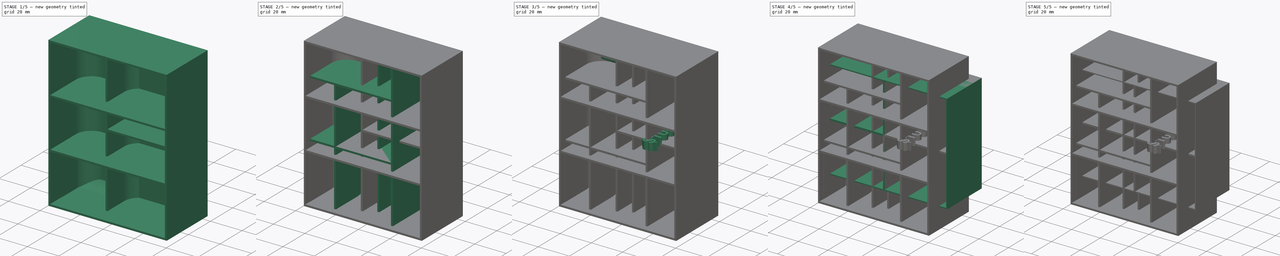
[diagram: build sequence overview — one tinted view per stage of 5, left to right]
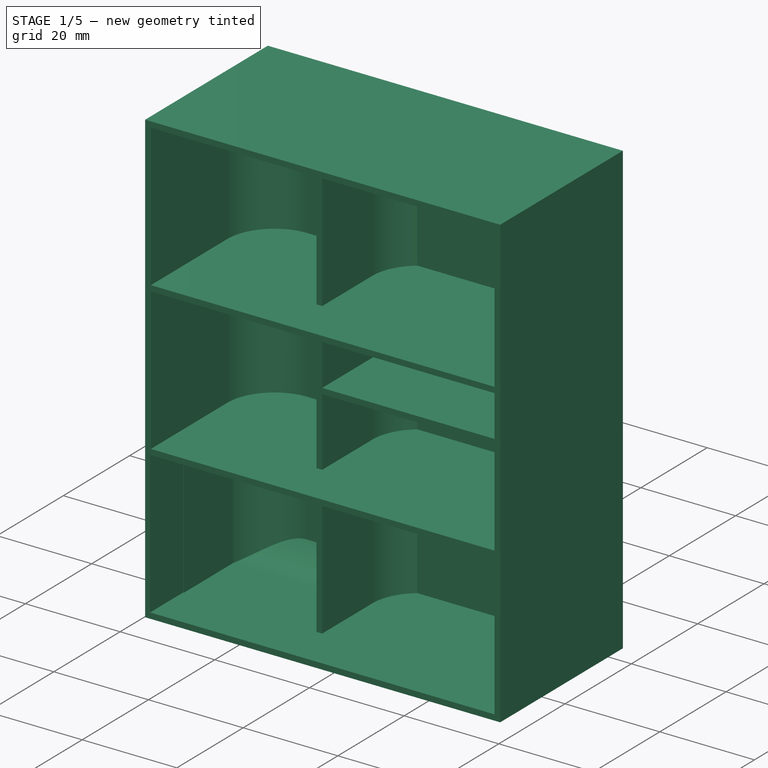
[diagram: stage 1 of 5 — iso view after this stage's code; geometry added in this stage tinted green]
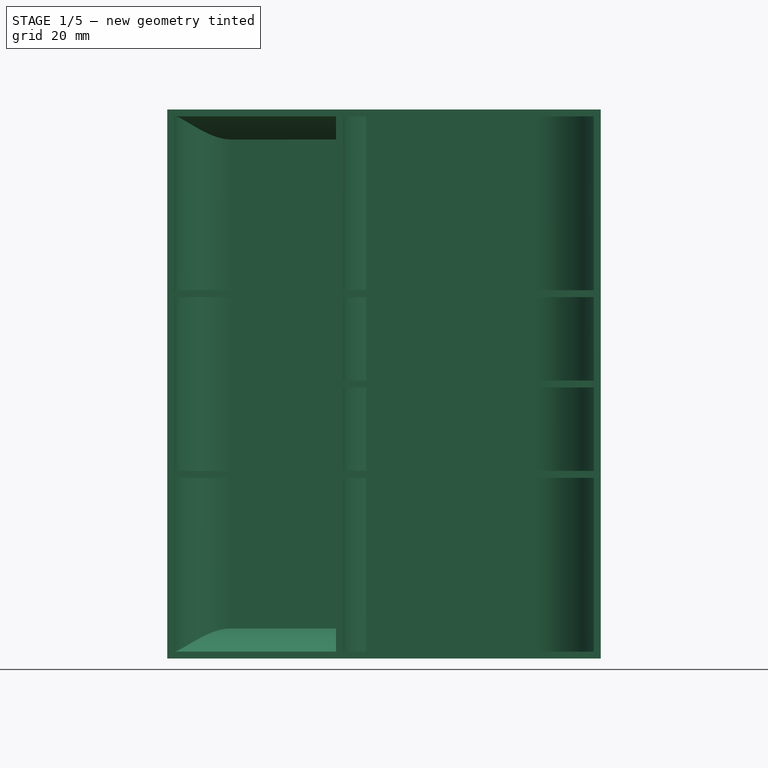
[diagram: stage 1 of 5 — front view after this stage's code; geometry added in this stage tinted green]
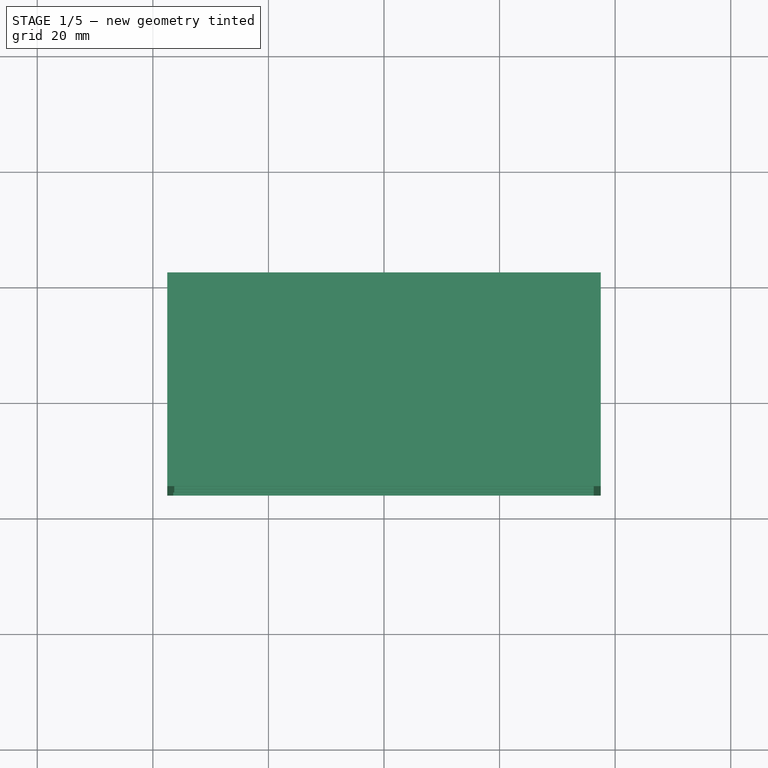
[diagram: stage 1 of 5 — top view after this stage's code; geometry added in this stage tinted green]
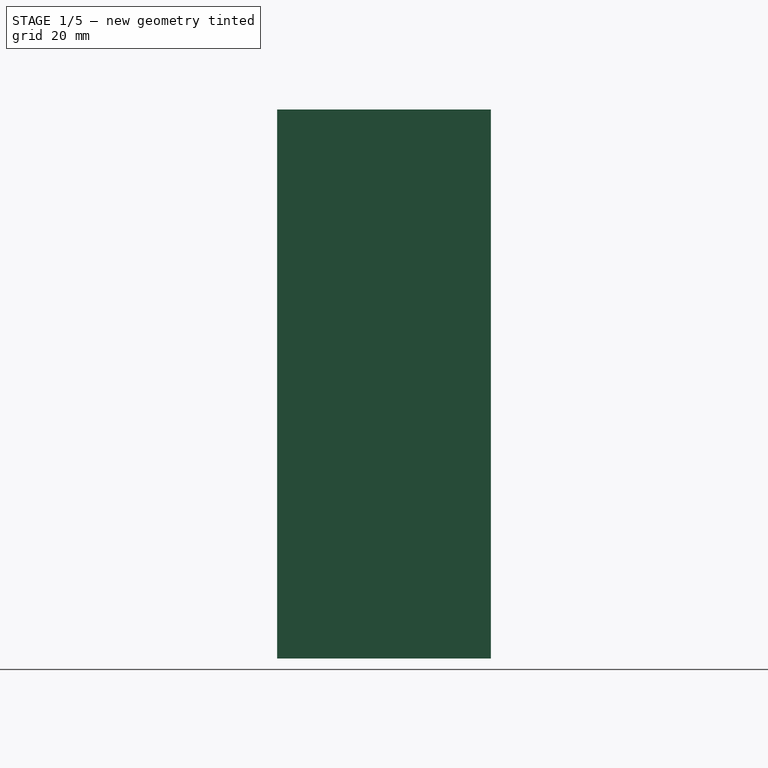
[diagram: stage 1 of 5 — right view after this stage's code; geometry added in this stage tinted green]
FCSTD DOCUMENT  (FreeCAD 0.19R24291 (Git))
Label: Streets
License: All rights reserved
LicenseURL: http://en.wikipedia.org/wiki/All_rights_reserved
objects: Sketcher::SketchObject×18, PartDesign::Pad×15, PartDesign::Fillet×12, PartDesign::Body×7, App::Part×7, Part::Part2DObjectPython×6, PartDesign::LinearPattern×4, PartDesign::Pocket×3, PartDesign::MultiTransform×1, Part::Extrusion×1
note: 97 computed .brp shape members not serialized (recipe doc carries the construction recipe); baked Part::Feature solids carry a one-line shape summary decoded from their .brp

FEATURE [PartDesign::Body] Body002
  Group = -> [Sketch009,Pad005,Sketch010,Pad006,Fillet003]
  Origin = -> Origin005
  Tip = -> Fillet003
FEATURE [Sketcher::SketchObject] Sketch011
  FullyConstrained = true
  MapMode = 5
  Placement = pos=(0,0,0) rot=(1,0,0;1.5708rad)
  Support = -> [XZ_Plane006]
  sketch-geometry (4):
    g0: LineSegment StartX=-37.5 StartY=47.5 StartZ=0 EndX=37.5 EndY=47.5 EndZ=0
    g1: LineSegment StartX=37.5 StartY=47.5 StartZ=0 EndX=37.5 EndY=-47.5 EndZ=0
    g2: LineSegment StartX=37.5 StartY=-47.5 StartZ=0 EndX=-37.5 EndY=-47.5 EndZ=0
    g3: LineSegment StartX=-37.5 StartY=-47.5 StartZ=0 EndX=-37.5 EndY=47.5 EndZ=0
  constraints (10):
    c: Coincident(g0,g1)
    c: Coincident(g1,g2)
    c: Coincident(g2,g3)
    c: Coincident(g3,g0)
    c: Horizontal(g2)
    c: Vertical(g1)
    c: DistanceX(g0,g0) = 75
    c: DistanceY(g3,g3) = 95
    c: Symmetric(g0,g0,g-2)
    c: Symmetric(g0,g2,g-1)
FEATURE [PartDesign::Pad] Pad007
  Direction = (1,1,1)
  Length = 2
  Length2 = 100
  Midplane = true
  Placement = pos=(0,0,0) rot=(1,0,0;1.5708rad)
  Profile = -> Sketch011
  Type = 0
FEATURE [Sketcher::SketchObject] Sketch012
  AttachmentOffset = pos=(0,0,1) rot=(0,0,1;0rad)
  FullyConstrained = true
  MapMode = 5
  Placement = pos=(0,-1,-2e-16) rot=(1,0,0;1.5708rad)
  Support = -> [XZ_Plane006]
  sketch-geometry (16):
    g0: LineSegment StartX=-37.5 StartY=47.5 StartZ=0 EndX=37.5 EndY=47.5 EndZ=0
    g1: LineSegment StartX=37.5 StartY=47.5 StartZ=0 EndX=37.5 EndY=-47.5 EndZ=0
    g2: LineSegment StartX=37.5 StartY=-47.5 StartZ=0 EndX=-37.5 EndY=-47.5 EndZ=0
    g3: LineSegment StartX=-37.5 StartY=-47.5 StartZ=0 EndX=-37.5 EndY=47.5 EndZ=0
    g4: LineSegment StartX=-36.3 StartY=46.3 StartZ=0 EndX=-8.3 EndY=46.3 EndZ=0
    g5: LineSegment StartX=-8.3 StartY=46.3 StartZ=0 EndX=-8.3 EndY=-46.3 EndZ=0
    g6: LineSegment StartX=-8.3 StartY=-46.3 StartZ=0 EndX=-36.3 EndY=-46.3 EndZ=0
    g7: LineSegment StartX=-36.3 StartY=-46.3 StartZ=0 EndX=-36.3 EndY=46.3 EndZ=0
    g8: LineSegment StartX=-7.1 StartY=46.3 StartZ=0 EndX=36.3 EndY=46.3 EndZ=0
    g9: LineSegment StartX=36.3 StartY=46.3 StartZ=0 EndX=36.3 EndY=0.6 EndZ=0
    g10: LineSegment StartX=36.3 StartY=0.6 StartZ=0 EndX=-7.1 EndY=0.6 EndZ=0
    g11: LineSegment StartX=-7.1 StartY=0.6 StartZ=0 EndX=-7.1 EndY=46.3 EndZ=0
    g12: LineSegment StartX=-7.1 StartY=-0.6 StartZ=0 EndX=36.3 EndY=-0.6 EndZ=0
    g13: LineSegment StartX=36.3 StartY=-0.6 StartZ=0 EndX=36.3 EndY=-46.3 EndZ=0
    g14: LineSegment StartX=36.3 StartY=-46.3 StartZ=0 EndX=-7.1 EndY=-46.3 EndZ=0
    g15: LineSegment StartX=-7.1 StartY=-46.3 StartZ=0 EndX=-7.1 EndY=-0.6 EndZ=0
  constraints (47):
    c: Coincident(g0,g1)
    c: Coincident(g1,g2)
    c: Coincident(g2,g3)
    c: Coincident(g3,g0)
    c: Horizontal(g2)
    c: Vertical(g1)
    c: DistanceY(g1,g1) = 95
    c: DistanceX(g2,g2) = 75
    c: Symmetric(g0,g0,g-2)
    c: Symmetric(g0,g2,g-1)
    c: Coincident(g4,g5)
    c: Coincident(g5,g6)
    c: Coincident(g6,g7)
    c: Coincident(g7,g4)
    c: Horizontal(g4)
    c: Horizontal(g6)
    c: Vertical(g5)
    c: Vertical(g7)
    c: Coincident(g8,g9)
    c: Coincident(g9,g10)
    c: Coincident(g10,g11)
    c: Coincident(g11,g8)
    c: Horizontal(g8)
    c: Horizontal(g10)
    c: Vertical(g9)
    c: Vertical(g11)
    c: Coincident(g12,g13)
    c: Coincident(g13,g14)
    c: Coincident(g14,g15)
    c: Coincident(g15,g12)
    c: Horizontal(g12)
    c: Horizontal(g14)
    c: Vertical(g13)
    c: Vertical(g15)
    c: DistanceX(g0,g4) = 1.2
    c: DistanceY(g4,g0) = 1.2
    c: DistanceY(g2,g6) = 1.2
    c: DistanceY(g1,g13) = 1.2
    c: DistanceX(g5,g14) = 1.2
    c: DistanceX(g13,g1) = 1.2
    c: DistanceY(g12,g10) = 1.2
    c: Symmetric(g10,g12,g-1)
    c: Symmetric(g4,g8,g-2)
    c: DistanceX(g4,g4) = 28
    c: DistanceX(g4,g8) = 1.2
    c: Horizontal(g8,g4)
    c: Symmetric(g9,g12,g-1)
FEATURE [PartDesign::Pad] Pad008
  BaseFeature = -> Pad007
  Direction = (1,1,1)
  Length = 25
  Length2 = 100
  Placement = pos=(0,0,0) rot=(1,0,0;1.5708rad)
  Profile = -> Sketch012
  Type = 0
FEATURE [PartDesign::Body] Body005
  Group = -> [Sketch015,Pad011,Sketch016,Pad012,Fillet008,Fillet009]
  Origin = -> Origin011
  Placement = pos=(0,0,0) rot=(-1,0,0;1.5708rad)
  Tip = -> Fillet009
FEATURE [App::Part] Part006  label="MoneyTray-Large"
  Group = -> [Body005]
  Origin = -> Origin012
FEATURE [PartDesign::Fillet] Fillet010
  Base = -> Pad008 [Edge47,Edge55,Edge40,Edge43,Edge51,Edge37]
  BaseFeature = -> Pad008
  Placement = pos=(0,0,0) rot=(1,0,0;1.5708rad)
  Radius = 10
  SupportTransform = false
FEATURE [PartDesign::Body] Body003  label="Body"
  Group = -> [Sketch011,Pad007,Sketch012,Pad008,Fillet010,Fillet011]
  Origin = -> Origin006
  Placement = pos=(0,0,0) rot=(-1,0,0;1.5708rad)
  Tip = -> Fillet011
FEATURE [App::Part] Part004  label="MoneyTray-Small"
  Group = -> [Body003]
  Origin = -> Origin009
FEATURE [Sketcher::SketchObject] Sketch017
  FullyConstrained = true
  MapMode = 5
  Placement = pos=(0,0,0) rot=(1,0,0;1.5708rad)
  Support = -> [XZ_Plane018]
  sketch-geometry (4):
    g0: LineSegment StartX=-37.5 StartY=47.5 StartZ=0 EndX=37.5 EndY=47.5 EndZ=0
    g1: LineSegment StartX=37.5 StartY=47.5 StartZ=0 EndX=37.5 EndY=-47.5 EndZ=0
    g2: LineSegment StartX=37.5 StartY=-47.5 StartZ=0 EndX=-37.5 EndY=-47.5 EndZ=0
    g3: LineSegment StartX=-37.5 StartY=-47.5 StartZ=0 EndX=-37.5 EndY=47.5 EndZ=0
  constraints (10):
    c: Coincident(g0,g1)
    c: Coincident(g1,g2)
    c: Coincident(g2,g3)
    c: Coincident(g3,g0)
    c: Horizontal(g2)
    c: Vertical(g1)
    c: DistanceX(g0,g0) = 75
    c: DistanceY(g3,g3) = 95
    c: Symmetric(g0,g0,g-2)
    c: Symmetric(g0,g2,g-1)
FEATURE [PartDesign::Pad] Pad013
  Direction = (1,1,1)
  Length = 3
  Length2 = 100
  Placement = pos=(0,0,0) rot=(1,0,0;1.5708rad)
  Profile = -> Sketch017
  Type = 0
FEATURE [Sketcher::SketchObject] Sketch018
  AttachmentOffset = pos=(0,0,1) rot=(0,0,1;0rad)
  FullyConstrained = false
  MapMode = 5
  Placement = pos=(0,-1,-2e-16) rot=(1,0,0;1.5708rad)
  Support = -> [XZ_Plane018]
  sketch-geometry (16):
    g0: LineSegment StartX=-37.5 StartY=47.5 StartZ=0 EndX=37.5 EndY=47.5 EndZ=0
    g1: LineSegment StartX=37.5 StartY=47.5 StartZ=0 EndX=37.5 EndY=-47.5 EndZ=0
    g2: LineSegment StartX=37.5 StartY=-47.5 StartZ=0 EndX=-37.5 EndY=-47.5 EndZ=0
    g3: LineSegment StartX=-37.5 StartY=-47.5 StartZ=0 EndX=-37.5 EndY=47.5 EndZ=0
    g4: LineSegment StartX=-36.3 StartY=46.3 StartZ=0 EndX=36.3 EndY=46.3 EndZ=0
    g5: LineSegment StartX=36.3 StartY=46.3 StartZ=0 EndX=36.3 EndY=16.2333 EndZ=0
    g6: LineSegment StartX=36.3 StartY=16.2333 StartZ=0 EndX=-36.3 EndY=16.2333 EndZ=0
    g7: LineSegment StartX=-36.3 StartY=16.2333 StartZ=0 EndX=-36.3 EndY=46.3 EndZ=0
    g8: LineSegment StartX=36.3 StartY=15.0333 StartZ=0 EndX=-36.3 EndY=15.0333 EndZ=0
    g9: LineSegment StartX=-36.3 StartY=15.0333 StartZ=0 EndX=-36.3 EndY=-15.0333 EndZ=0
    g10: LineSegment StartX=-36.3 StartY=-15.0333 StartZ=0 EndX=36.3 EndY=-15.0333 EndZ=0
    g11: LineSegment StartX=36.3 StartY=-15.0333 StartZ=0 EndX=36.3 EndY=15.0333 EndZ=0
    g12: LineSegment StartX=-36.4577 StartY=-16.2333 StartZ=0 EndX=36.3 EndY=-16.2333 EndZ=0
    g13: LineSegment StartX=36.3 StartY=-16.2333 StartZ=0 EndX=36.3 EndY=-46.3 EndZ=0
    g14: LineSegment StartX=36.3 StartY=-46.3 StartZ=0 EndX=-36.4577 EndY=-46.3 EndZ=0
    g15: LineSegment StartX=-36.4577 StartY=-46.3 StartZ=0 EndX=-36.4577 EndY=-16.2333 EndZ=0
  constraints (45):
    c: Coincident(g0,g1)
    c: Coincident(g1,g2)
    c: Coincident(g2,g3)
    c: Coincident(g3,g0)
    c: Horizontal(g2)
    c: Vertical(g1)
    c: DistanceX(g0,g0) = 75
    c: DistanceY(g3,g3) = 95
    c: Symmetric(g0,g0,g-2)
    c: Symmetric(g0,g2,g-1)
    c: Coincident(g4,g5)
    c: Coincident(g5,g6)
    c: Coincident(g6,g7)
    c: Coincident(g7,g4)
    c: Horizontal(g4)
    c: Horizontal(g6)
    c: Vertical(g5)
    c: Vertical(g7)
    c: Coincident(g8,g9)
    c: Coincident(g9,g10)
    c: Coincident(g10,g11)
    c: Coincident(g11,g8)
    c: Horizontal(g8)
    c: Horizontal(g10)
    c: Vertical(g9)
    c: Vertical(g11)
    c: Coincident(g12,g13)
    c: Coincident(g13,g14)
    c: Coincident(g14,g15)
    c: Coincident(g15,g12)
    c: Horizontal(g12)
    c: Horizontal(g14)
    c: Vertical(g13)
    c: Vertical(g15)
    c: DistanceY(g4,g0) = 1.2
    c: DistanceX(g4,g0) = 1.2
    c: DistanceY(g12,g10) = 1.2
    c: DistanceY(g1,g13) = 1.2
    c: DistanceX(g13,g1) = 1.2
    c: DistanceX(g0,g4) = 1.2
    c: DistanceY(g8,g6) = 1.2
    c: DistanceX(g0,g8) = 1.2
    c: DistanceX(g8,g0) = 1.2
    c: Equal(g7,g9)
    c: Equal(g9,g15)
FEATURE [PartDesign::Pad] Pad014
  BaseFeature = -> Pad013
  Direction = (1,1,1)
  Length = 35
  Length2 = 100
  Placement = pos=(0,0,0) rot=(1,0,0;1.5708rad)
  Profile = -> Sketch018
  Type = 0
FEATURE [PartDesign::Fillet] Fillet012
  Base = -> Pad014 [Face2]
  BaseFeature = -> Pad014
  Placement = pos=(0,0,0) rot=(1,0,0;1.5708rad)
  Radius = 1.8
  SupportTransform = false
FEATURE [PartDesign::Fillet] Fillet013
  Base = -> Fillet012 [Edge54,Edge64,Edge46,Edge49,Edge60,Edge41]
  BaseFeature = -> Fillet012
  Placement = pos=(0,0,0) rot=(1,0,0;1.5708rad)
  Radius = 10
  SupportTransform = false
FEATURE [PartDesign::Body] Body006
  Group = -> [Sketch017,Pad013,Sketch018,Pad014,Fillet012,Fillet013]
  Origin = -> Origin014
  Tip = -> Fillet013
FEATURE [App::Part] Part007  label="AlternateMoneyTray"
  Group = -> [Body006]
  Origin = -> Origin013
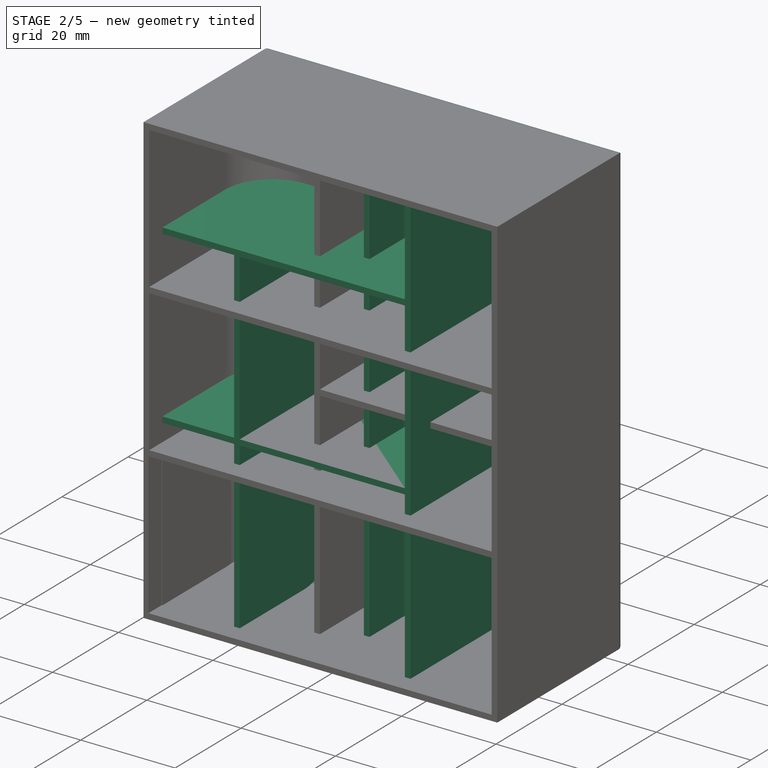
[diagram: stage 2 of 5 — iso view after this stage's code; geometry added in this stage tinted green]
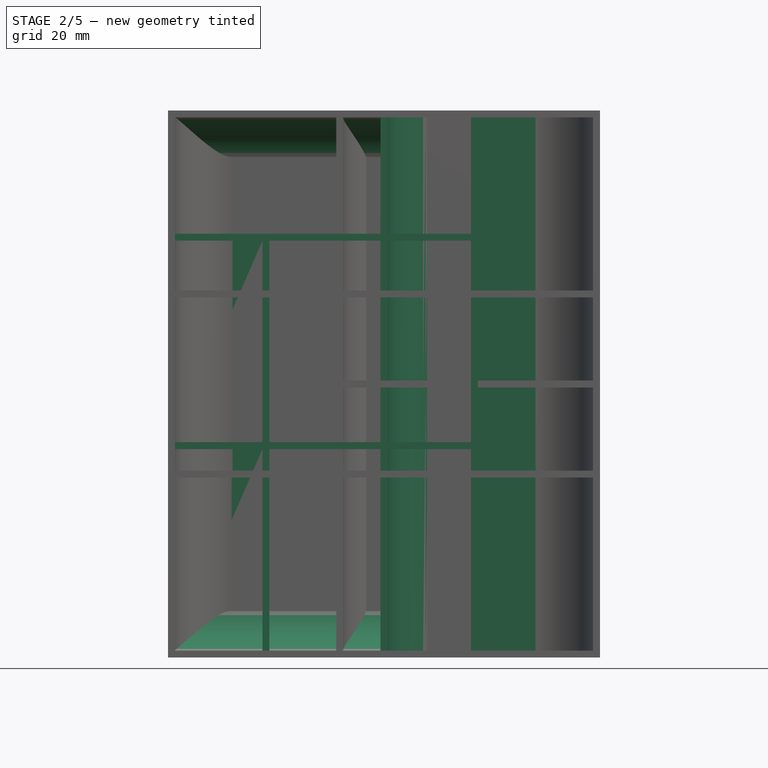
[diagram: stage 2 of 5 — front view after this stage's code; geometry added in this stage tinted green]
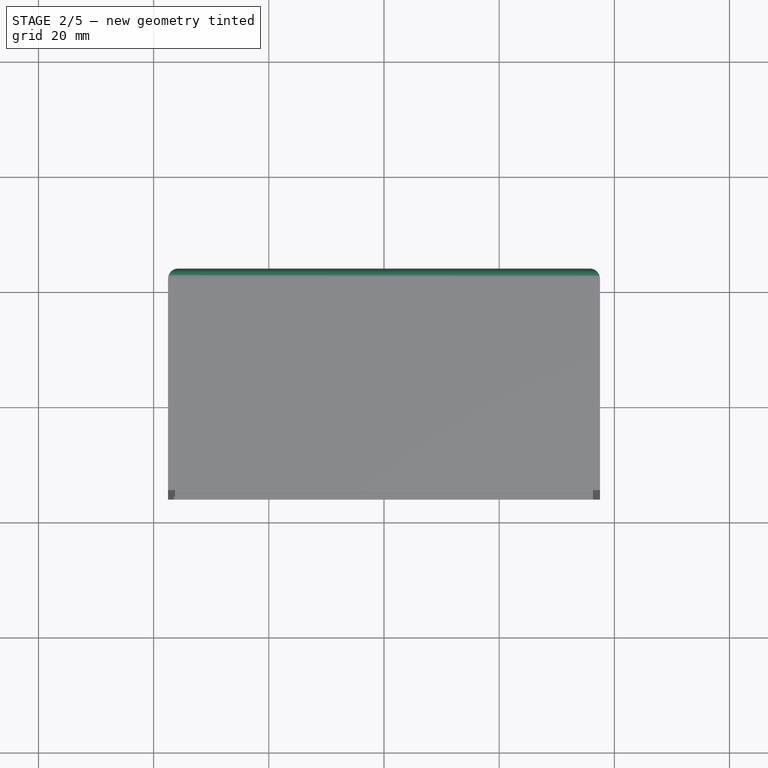
[diagram: stage 2 of 5 — top view after this stage's code; geometry added in this stage tinted green]
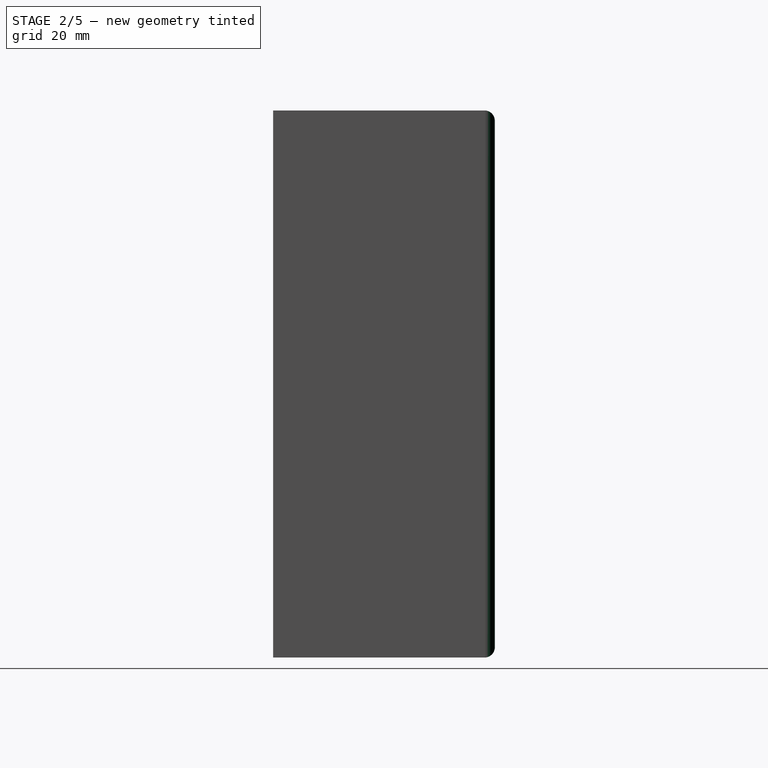
[diagram: stage 2 of 5 — right view after this stage's code; geometry added in this stage tinted green]
FEATURE [PartDesign::Body] Body001
  Group = -> [Sketch006,Pad002,Sketch007,Pad003,Fillet001,Sketch008,Pad004,Fillet002]
  Origin = -> Origin003
  Tip = -> Fillet002
FEATURE [App::Part] Part001  label="MeepleTray"
  Group = -> [Body001]
  Origin = -> Origin002
  Placement = pos=(0,0,0) rot=(0,0,1;3.14159rad)
FEATURE [Sketcher::SketchObject] Sketch009
  FullyConstrained = true
  MapMode = 5
  Placement = pos=(0,0,0) rot=(1,0,0;1.5708rad)
  Support = -> [XZ_Plane005]
  sketch-geometry (4):
    g0: LineSegment StartX=-37.5 StartY=47.5 StartZ=0 EndX=37.5 EndY=47.5 EndZ=0
    g1: LineSegment StartX=37.5 StartY=47.5 StartZ=0 EndX=37.5 EndY=-47.5 EndZ=0
    g2: LineSegment StartX=37.5 StartY=-47.5 StartZ=0 EndX=-37.5 EndY=-47.5 EndZ=0
    g3: LineSegment StartX=-37.5 StartY=-47.5 StartZ=0 EndX=-37.5 EndY=47.5 EndZ=0
  constraints (10):
    c: Coincident(g0,g1)
    c: Coincident(g1,g2)
    c: Coincident(g2,g3)
    c: Coincident(g3,g0)
    c: Horizontal(g2)
    c: Vertical(g1)
    c: DistanceX(g0,g0) = 75
    c: DistanceY(g3,g3) = 95
    c: Symmetric(g0,g0,g-2)
    c: Symmetric(g0,g2,g-1)
FEATURE [PartDesign::Pad] Pad005
  Direction = (1,1,1)
  Length = 3
  Length2 = 100
  Placement = pos=(0,0,0) rot=(1,0,0;1.5708rad)
  Profile = -> Sketch009
  Type = 0
FEATURE [Sketcher::SketchObject] Sketch010
  AttachmentOffset = pos=(0,0,2) rot=(0,0,1;0rad)
  FullyConstrained = true
  MapMode = 5
  Placement = pos=(0,-2,-4e-16) rot=(1,0,0;1.5708rad)
  Support = -> [XZ_Plane005]
  sketch-geometry (28):
    g0: LineSegment StartX=-37.5 StartY=47.5 StartZ=0 EndX=37.5 EndY=47.5 EndZ=0
    g1: LineSegment StartX=37.5 StartY=47.5 StartZ=0 EndX=37.5 EndY=-47.5 EndZ=0
    g2: LineSegment StartX=37.5 StartY=-47.5 StartZ=0 EndX=-37.5 EndY=-47.5 EndZ=0
    g3: LineSegment StartX=-37.5 StartY=-47.5 StartZ=0 EndX=-37.5 EndY=47.5 EndZ=0
    g4: LineSegment StartX=-36.3 StartY=46.3 StartZ=0 EndX=15.1 EndY=46.3 EndZ=0
    g5: LineSegment StartX=15.1 StartY=46.3 StartZ=0 EndX=15.1 EndY=26.1 EndZ=0
    g6: LineSegment StartX=15.1 StartY=26.1 StartZ=0 EndX=-36.3 EndY=26.1 EndZ=0
    g7: LineSegment StartX=-36.3 StartY=26.1 StartZ=0 EndX=-36.3 EndY=46.3 EndZ=0
    g8: LineSegment StartX=16.3 StartY=46.3 StartZ=0 EndX=36.3 EndY=46.3 EndZ=0
    g9: LineSegment StartX=36.3 StartY=46.3 StartZ=0 EndX=36.3 EndY=-46.3 EndZ=0
    g10: LineSegment StartX=36.3 StartY=-46.3 StartZ=0 EndX=16.3 EndY=-46.3 EndZ=0
    g11: LineSegment StartX=16.3 StartY=-46.3 StartZ=0 EndX=16.3 EndY=46.3 EndZ=0
    g12: LineSegment StartX=-36.3 StartY=24.9 StartZ=0 EndX=-21.1 EndY=24.9 EndZ=0
    g13: LineSegment StartX=-21.1 StartY=24.9 StartZ=0 EndX=-21.1 EndY=-10.1 EndZ=0
    g14: LineSegment StartX=-21.1 StartY=-10.1 StartZ=0 EndX=-36.3 EndY=-10.1 EndZ=0
    g15: LineSegment StartX=-36.3 StartY=-10.1 StartZ=0 EndX=-36.3 EndY=24.9 EndZ=0
    g16: LineSegment StartX=-36.3 StartY=-11.3 StartZ=0 EndX=-21.1 EndY=-11.3 EndZ=0
    g17: LineSegment StartX=-21.1 StartY=-11.3 StartZ=0 EndX=-21.1 EndY=-46.3 EndZ=0
    g18: LineSegment StartX=-21.1 StartY=-46.3 StartZ=0 EndX=-36.3 EndY=-46.3 EndZ=0
    g19: LineSegment StartX=-36.3 StartY=-46.3 StartZ=0 EndX=-36.3 EndY=-11.3 EndZ=0
    g20: LineSegment StartX=-19.9 StartY=24.9 StartZ=0 EndX=15.1 EndY=24.9 EndZ=0
    g21: LineSegment StartX=15.1 StartY=24.9 StartZ=0 EndX=15.1 EndY=-10.1 EndZ=0
    g22: LineSegment StartX=15.1 StartY=-10.1 StartZ=0 EndX=-19.9 EndY=-10.1 EndZ=0
    g23: LineSegment StartX=-19.9 StartY=-10.1 StartZ=0 EndX=-19.9 EndY=24.9 EndZ=0
    g24: LineSegment StartX=-19.9 StartY=-11.3 StartZ=0 EndX=15.1 EndY=-11.3 EndZ=0
    g25: LineSegment StartX=15.1 StartY=-11.3 StartZ=0 EndX=15.1 EndY=-46.3 EndZ=0
    g26: LineSegment StartX=15.1 StartY=-46.3 StartZ=0 EndX=-19.9 EndY=-46.3 EndZ=0
    g27: LineSegment StartX=-19.9 StartY=-46.3 StartZ=0 EndX=-19.9 EndY=-11.3 EndZ=0
  constraints (82):
    c: Coincident(g0,g1)
    c: Coincident(g1,g2)
    c: Coincident(g2,g3)
    c: Coincident(g3,g0)
    c: Horizontal(g2)
    c: Vertical(g1)
    c: DistanceY(g1,g1) = 95
    c: DistanceX(g2,g2) = 75
    c: Symmetric(g0,g0,g-2)
    c: Symmetric(g0,g2,g-1)
    c: Coincident(g4,g5)
    c: Coincident(g5,g6)
    c: Coincident(g6,g7)
    c: Coincident(g7,g4)
    c: Horizontal(g4)
    c: Horizontal(g6)
    c: Vertical(g5)
    c: Vertical(g7)
    c: Coincident(g8,g9)
    c: Coincident(g9,g10)
    c: Coincident(g10,g11)
    c: Coincident(g11,g8)
    c: Horizontal(g8)
    c: Horizontal(g10)
    c: Vertical(g9)
    c: Vertical(g11)
    c: Coincident(g12,g13)
    c: Coincident(g13,g14)
    c: Coincident(g14,g15)
    c: Coincident(g15,g12)
    c: Horizontal(g12)
    c: Horizontal(g14)
    c: Vertical(g13)
    c: Vertical(g15)
    c: Coincident(g16,g17)
    c: Coincident(g17,g18)
    c: Coincident(g18,g19)
    c: Coincident(g19,g16)
    c: Horizontal(g16)
    c: Horizontal(g18)
    c: Vertical(g17)
    c: Vertical(g19)
    c: Coincident(g20,g21)
    c: Coincident(g21,g22)
    c: Coincident(g22,g23)
    c: Coincident(g23,g20)
    c: Horizontal(g20)
    c: Horizontal(g22)
    c: Vertical(g21)
    c: Vertical(g23)
    c: Coincident(g24,g25)
    c: Coincident(g25,g26)
    c: Coincident(g26,g27)
    c: Coincident(g27,g24)
    c: Horizontal(g24)
    c: Horizontal(g26)
    c: Vertical(g25)
    c: Vertical(g27)
    c: DistanceX(g4,g8) = 1.2
    c: DistanceX(g20,g8) = 1.2
    c: DistanceX(g24,g8) = 1.2
    c: DistanceY(g4,g0) = 1.2
    c: DistanceY(g8,g0) = 1.2
    c: DistanceX(g8,g0) = 1.2
    c: DistanceX(g0,g4) = 1.2
    c: DistanceX(g0,g12) = 1.2
    c: DistanceX(g0,g16) = 1.2
    c: DistanceY(g2,g18) = 1.2
    c: DistanceY(g2,g26) = 1.2
    c: DistanceY(g2,g10) = 1.2
    c: DistanceY(g18,g16) = 35
    c: DistanceY(g16,g14) = 1.2
    c: DistanceY(g12,g6) = 1.2
    c: DistanceY(g20,g6) = 1.2
    c: DistanceY(g14,g12) = 35
    c: DistanceX(g20,g20) = 35
    c: Horizontal(g22,g13)
    c: Vertical(g24,g22)
    c: Horizontal(g16,g24)
    c: Vertical(g13,g16)
    c: DistanceX(g12,g20) = 1.2
    c: DistanceX(g8,g8) = 20
FEATURE [PartDesign::Pad] Pad006
  BaseFeature = -> Pad005
  Direction = (1,1,1)
  Length = 30
  Length2 = 100
  Placement = pos=(0,0,0) rot=(1,0,0;1.5708rad)
  Profile = -> Sketch010
  Type = 0
FEATURE [PartDesign::Body] Body004
  Group = -> [Sketch014,Pad009,Sketch013,Pad010,Fillet006,Fillet007]
  Origin = -> Origin008
  Tip = -> Fillet007
FEATURE [App::Part] Part003  label="MoneyTrayLid"
  Group = -> [Body004]
  Origin = -> Origin007
FEATURE [App::Part] Part005  label="MoneyTray-All (abandoned)"
  Group = -> [Body002]
  Origin = -> Origin010
FEATURE [Sketcher::SketchObject] Sketch015
  FullyConstrained = true
  MapMode = 5
  Placement = pos=(0,0,0) rot=(1,0,0;1.5708rad)
  Support = -> [XZ_Plane014]
  sketch-geometry (4):
    g0: LineSegment StartX=-37.5 StartY=47.5 StartZ=0 EndX=37.5 EndY=47.5 EndZ=0
    g1: LineSegment StartX=37.5 StartY=47.5 StartZ=0 EndX=37.5 EndY=-47.5 EndZ=0
    g2: LineSegment StartX=37.5 StartY=-47.5 StartZ=0 EndX=-37.5 EndY=-47.5 EndZ=0
    g3: LineSegment StartX=-37.5 StartY=-47.5 StartZ=0 EndX=-37.5 EndY=47.5 EndZ=0
  constraints (10):
    c: Coincident(g0,g1)
    c: Coincident(g1,g2)
    c: Coincident(g2,g3)
    c: Coincident(g3,g0)
    c: Horizontal(g2)
    c: Vertical(g1)
    c: DistanceX(g0,g0) = 75
    c: DistanceY(g3,g3) = 95
    c: Symmetric(g0,g0,g-2)
    c: Symmetric(g0,g2,g-1)
FEATURE [PartDesign::Pad] Pad011
  Direction = (1,1,1)
  Length = 2
  Length2 = 100
  Midplane = true
  Placement = pos=(0,0,0) rot=(1,0,0;1.5708rad)
  Profile = -> Sketch015
  Type = 0
FEATURE [Sketcher::SketchObject] Sketch016
  AttachmentOffset = pos=(0,0,1) rot=(0,0,1;0rad)
  FullyConstrained = true
  MapMode = 5
  Placement = pos=(0,-1,-2e-16) rot=(1,0,0;1.5708rad)
  Support = -> [XZ_Plane014]
  sketch-geometry (16):
    g0: LineSegment StartX=-37.5 StartY=47.5 StartZ=0 EndX=37.5 EndY=47.5 EndZ=0
    g1: LineSegment StartX=37.5 StartY=47.5 StartZ=0 EndX=37.5 EndY=-47.5 EndZ=0
    g2: LineSegment StartX=37.5 StartY=-47.5 StartZ=0 EndX=-37.5 EndY=-47.5 EndZ=0
    g3: LineSegment StartX=-37.5 StartY=-47.5 StartZ=0 EndX=-37.5 EndY=47.5 EndZ=0
    g4: LineSegment StartX=-36.3 StartY=46.3 StartZ=0 EndX=-0.6 EndY=46.3 EndZ=0
    g5: LineSegment StartX=-0.6 StartY=46.3 StartZ=0 EndX=-0.6 EndY=-46.3 EndZ=0
    g6: LineSegment StartX=-0.6 StartY=-46.3 StartZ=0 EndX=-36.3 EndY=-46.3 EndZ=0
    g7: LineSegment StartX=-36.3 StartY=-46.3 StartZ=0 EndX=-36.3 EndY=46.3 EndZ=0
    g8: LineSegment StartX=0.6 StartY=46.3 StartZ=0 EndX=36.3 EndY=46.3 EndZ=0
    g9: LineSegment StartX=36.3 StartY=46.3 StartZ=0 EndX=36.3 EndY=0.6 EndZ=0
    g10: LineSegment StartX=36.3 StartY=0.6 StartZ=0 EndX=0.6 EndY=0.6 EndZ=0
    g11: LineSegment StartX=0.6 StartY=0.6 StartZ=0 EndX=0.6 EndY=46.3 EndZ=0
    g12: LineSegment StartX=0.6 StartY=-0.6 StartZ=0 EndX=36.3 EndY=-0.6 EndZ=0
    g13: LineSegment StartX=36.3 StartY=-0.6 StartZ=0 EndX=36.3 EndY=-46.3 EndZ=0
    g14: LineSegment StartX=36.3 StartY=-46.3 StartZ=0 EndX=0.6 EndY=-46.3 EndZ=0
    g15: LineSegment StartX=0.6 StartY=-46.3 StartZ=0 EndX=0.6 EndY=-0.6 EndZ=0
  constraints (46):
    c: Coincident(g0,g1)
    c: Coincident(g1,g2)
    c: Coincident(g2,g3)
    c: Coincident(g3,g0)
    c: Horizontal(g2)
    c: Vertical(g1)
    c: DistanceY(g1,g1) = 95
    c: DistanceX(g2,g2) = 75
    c: Symmetric(g0,g0,g-2)
    c: Symmetric(g0,g2,g-1)
    c: Coincident(g4,g5)
    c: Coincident(g5,g6)
    c: Coincident(g6,g7)
    c: Coincident(g7,g4)
    c: Horizontal(g4)
    c: Horizontal(g6)
    c: Vertical(g5)
    c: Vertical(g7)
    c: Coincident(g8,g9)
    c: Coincident(g9,g10)
    c: Coincident(g10,g11)
    c: Coincident(g11,g8)
    c: Horizontal(g8)
    c: Horizontal(g10)
    c: Vertical(g9)
    c: Vertical(g11)
    c: Coincident(g12,g13)
    c: Coincident(g13,g14)
    c: Coincident(g14,g15)
    c: Coincident(g15,g12)
    c: Horizontal(g12)
    c: Horizontal(g14)
    c: Vertical(g13)
    c: Vertical(g15)
    c: DistanceX(g0,g4) = 1.2
    c: DistanceY(g4,g0) = 1.2
    c: DistanceY(g2,g6) = 1.2
    c: DistanceY(g1,g13) = 1.2
    c: DistanceX(g5,g14) = 1.2
    c: DistanceX(g13,g1) = 1.2
    c: DistanceY(g12,g10) = 1.2
    c: Symmetric(g10,g12,g-1)
    c: Symmetric(g4,g8,g-2)
    c: DistanceX(g4,g8) = 1.2
    c: Symmetric(g9,g12,g-1)
    c: Symmetric(g4,g8,g-2)
FEATURE [PartDesign::Pad] Pad012
  BaseFeature = -> Pad011
  Direction = (1,1,1)
  Length = 25
  Length2 = 100
  Placement = pos=(0,0,0) rot=(1,0,0;1.5708rad)
  Profile = -> Sketch016
  Type = 0
FEATURE [PartDesign::Fillet] Fillet008
  Base = -> Pad012 [Edge48,Edge44,Edge54,Edge49,Edge57,Edge62]
  BaseFeature = -> Pad012
  Placement = pos=(0,0,0) rot=(1,0,0;1.5708rad)
  Radius = 10
  SupportTransform = false
FEATURE [PartDesign::Fillet] Fillet009
  Base = -> Fillet008 [Face35]
  BaseFeature = -> Fillet008
  Placement = pos=(0,0,0) rot=(1,0,0;1.5708rad)
  Radius = 1.8
  SupportTransform = false
FEATURE [PartDesign::Fillet] Fillet011
  Base = -> Fillet010 [Face31]
  BaseFeature = -> Fillet010
  Placement = pos=(0,0,0) rot=(1,0,0;1.5708rad)
  Radius = 1.8
  SupportTransform = false
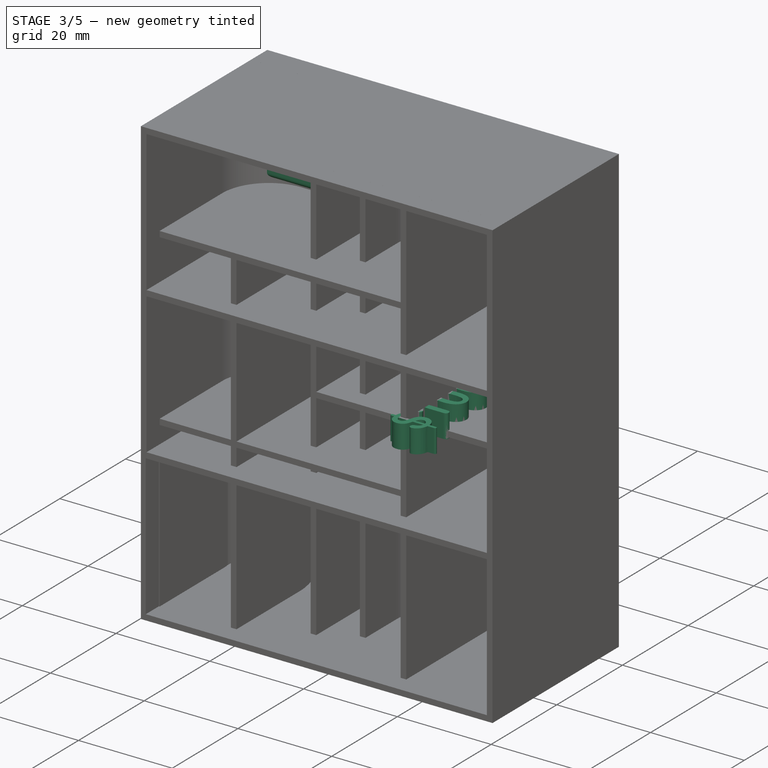
[diagram: stage 3 of 5 — iso view after this stage's code; geometry added in this stage tinted green]
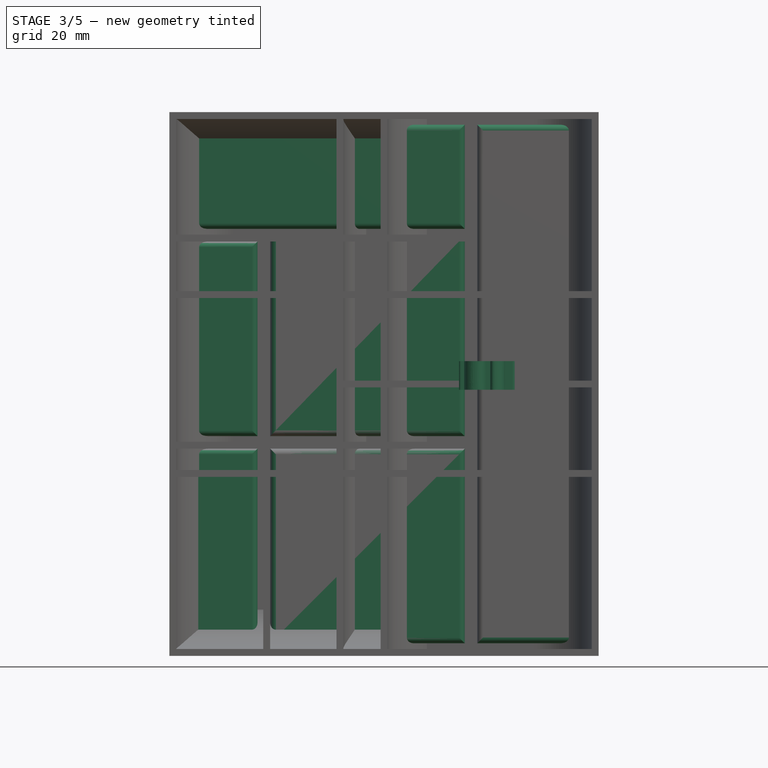
[diagram: stage 3 of 5 — front view after this stage's code; geometry added in this stage tinted green]
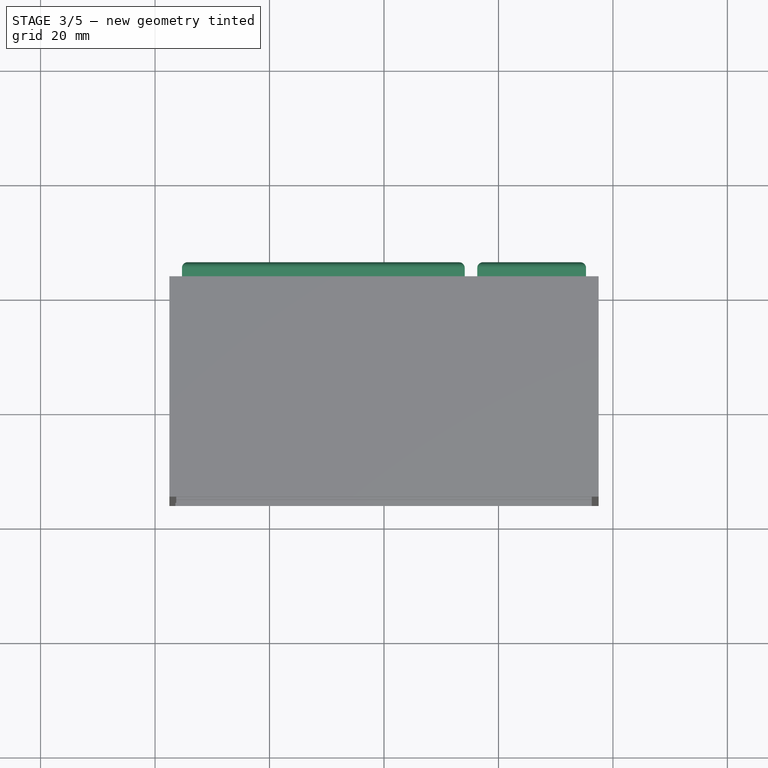
[diagram: stage 3 of 5 — top view after this stage's code; geometry added in this stage tinted green]
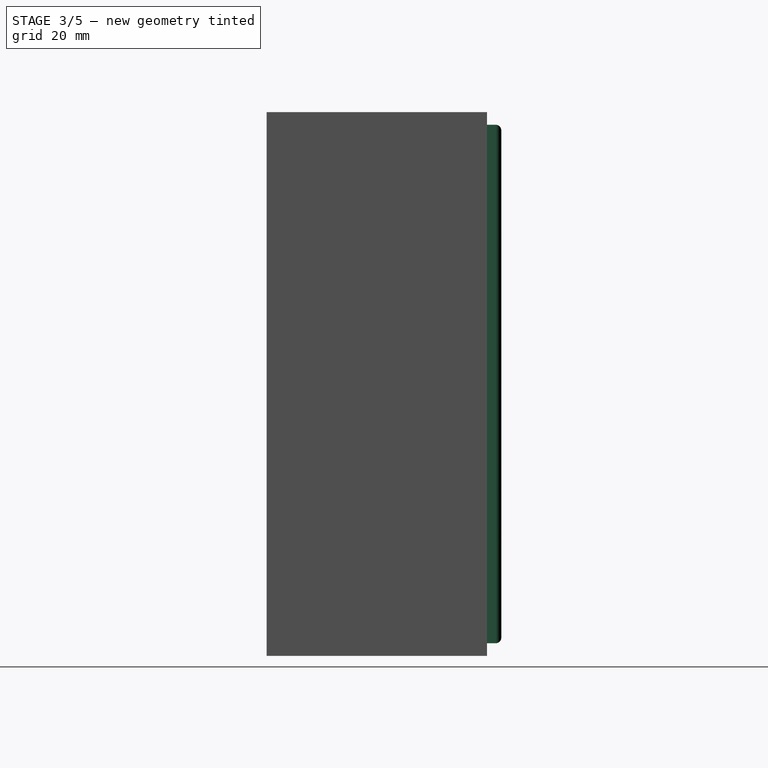
[diagram: stage 3 of 5 — right view after this stage's code; geometry added in this stage tinted green]
FEATURE [PartDesign::Fillet] Fillet003
  Base = -> Pad006 [Face2]
  BaseFeature = -> Pad006
  Placement = pos=(0,0,0) rot=(1,0,0;1.5708rad)
  Radius = 1.8
  SupportTransform = false
FEATURE [Part::Part2DObjectPython] ShapeString  label="ShapeString-100"  # Draft 2D object (typed FeaturePython)
  FontFile = /System/Library/Fonts/Supplemental/Arial Rounded Bold.ttf
  Placement = pos=(0,0,0) rot=(0,0,1;1.5708rad)
  Size = 7.5
  String = $100
  Tracking = 0
FEATURE [Part::Part2DObjectPython] ShapeString001  label="ShapeString-50"  # Draft 2D object (typed FeaturePython)
  FontFile = /System/Library/Fonts/Supplemental/Arial Rounded Bold.ttf
  Size = 7
  String = $50
  Tracking = 0
FEATURE [Part::Part2DObjectPython] ShapeString002  label="ShapeString-20"  # Draft 2D object (typed FeaturePython)
  FontFile = /System/Library/Fonts/Supplemental/Arial Rounded Bold.ttf
  Size = 6.5
  String = $20
  Tracking = 0
FEATURE [Part::Part2DObjectPython] ShapeString003  label="ShapeString-10"  # Draft 2D object (typed FeaturePython)
  FontFile = /System/Library/Fonts/Supplemental/Arial Rounded Bold.ttf
  Size = 6
  String = $10
  Tracking = 0
FEATURE [Part::Part2DObjectPython] ShapeString004  label="ShapeString-5"  # Draft 2D object (typed FeaturePython)
  FontFile = /System/Library/Fonts/Supplemental/Arial Rounded Bold.ttf
  Size = 5.5
  String = $5
  Tracking = 0
FEATURE [Part::Part2DObjectPython] ShapeString005  label="ShapeString-1"  # Draft 2D object (typed FeaturePython)
  FontFile = /System/Library/Fonts/Supplemental/Arial Rounded Bold.ttf
  Size = 5
  String = $1
  Tracking = 0
FEATURE [Part::Extrusion] Extrude
  Base = -> ShapeString
  Dir = (0,0,1)
  DirMode = 2
  FaceMakerClass = Part::FaceMakerBullseye
  LengthFwd = 5
  LengthRev = 0
  Placement = pos=(21,-35,-1) rot=(0,0,1;0rad)
  Solid = false
  Symmetric = false
FEATURE [Sketcher::SketchObject] Sketch013
  FullyConstrained = true
  MapMode = 5
  Placement = pos=(0,0,0) rot=(1,0,0;1.5708rad)
  Support = -> [XZ_Plane011]
  sketch-geometry (24):
    g0: LineSegment StartX=-35.3 StartY=45.3 StartZ=0 EndX=14.1 EndY=45.3 EndZ=0
    g1: LineSegment StartX=14.1 StartY=45.3 StartZ=0 EndX=14.1 EndY=27.1 EndZ=0
    g2: LineSegment StartX=14.1 StartY=27.1 StartZ=0 EndX=-35.3 EndY=27.1 EndZ=0
    g3: LineSegment StartX=-35.3 StartY=27.1 StartZ=0 EndX=-35.3 EndY=45.3 EndZ=0
    g4: LineSegment StartX=16.3 StartY=45.3 StartZ=0 EndX=35.3 EndY=45.3 EndZ=0
    g5: LineSegment StartX=35.3 StartY=45.3 StartZ=0 EndX=35.3 EndY=-45.3 EndZ=0
    g6: LineSegment StartX=35.3 StartY=-45.3 StartZ=0 EndX=16.3 EndY=-45.3 EndZ=0
    g7: LineSegment StartX=16.3 StartY=-45.3 StartZ=0 EndX=16.3 EndY=45.3 EndZ=0
    g8: LineSegment StartX=-35.3 StartY=24.9 StartZ=0 EndX=-22.1 EndY=24.9 EndZ=0
    g9: LineSegment StartX=-22.1 StartY=24.9 StartZ=0 EndX=-22.1 EndY=-9.1 EndZ=0
    g10: LineSegment StartX=-22.1 StartY=-9.1 StartZ=0 EndX=-35.3 EndY=-9.1 EndZ=0
    g11: LineSegment StartX=-35.3 StartY=-9.1 StartZ=0 EndX=-35.3 EndY=24.9 EndZ=0
    g12: LineSegment StartX=-35.3 StartY=-11.3 StartZ=0 EndX=-22.1 EndY=-11.3 EndZ=0
    g13: LineSegment StartX=-22.1 StartY=-11.3 StartZ=0 EndX=-22.1 EndY=-45.3 EndZ=0
    g14: LineSegment StartX=-22.1 StartY=-45.3 StartZ=0 EndX=-35.3 EndY=-45.3 EndZ=0
    g15: LineSegment StartX=-35.3 StartY=-45.3 StartZ=0 EndX=-35.3 EndY=-11.3 EndZ=0
    g16: LineSegment StartX=-19.9 StartY=25.9 StartZ=0 EndX=14.1 EndY=25.9 EndZ=0
    g17: LineSegment StartX=14.1 StartY=25.9 StartZ=0 EndX=14.1 EndY=-9.1 EndZ=0
    g18: LineSegment StartX=14.1 StartY=-9.1 StartZ=0 EndX=-19.9 EndY=-9.1 EndZ=0
    g19: LineSegment StartX=-19.9 StartY=-9.1 StartZ=0 EndX=-19.9 EndY=25.9 EndZ=0
    g20: LineSegment StartX=-19.9 StartY=-11.3 StartZ=0 EndX=14.1 EndY=-11.3 EndZ=0
    g21: LineSegment StartX=14.1 StartY=-11.3 StartZ=0 EndX=14.1 EndY=-45.3 EndZ=0
    g22: LineSegment StartX=14.1 StartY=-45.3 StartZ=0 EndX=-19.9 EndY=-45.3 EndZ=0
    g23: LineSegment StartX=-19.9 StartY=-45.3 StartZ=0 EndX=-19.9 EndY=-11.3 EndZ=0
  constraints (70):
    c: Coincident(g0,g1)
    c: Coincident(g1,g2)
    c: Coincident(g2,g3)
    c: Coincident(g3,g0)
    c: Horizontal(g0)
    c: Horizontal(g2)
    c: Vertical(g1)
    c: Vertical(g3)
    c: Coincident(g4,g5)
    c: Coincident(g5,g6)
    c: Coincident(g6,g7)
    c: Coincident(g7,g4)
    c: Horizontal(g4)
    c: Horizontal(g6)
    c: Vertical(g7)
    c: Coincident(g8,g9)
    c: Coincident(g9,g10)
    c: Coincident(g10,g11)
    c: Coincident(g11,g8)
    c: Horizontal(g8)
    c: Horizontal(g10)
    c: Vertical(g9)
    c: Vertical(g11)
    c: Coincident(g12,g13)
    c: Coincident(g13,g14)
    c: Coincident(g14,g15)
    c: Coincident(g15,g12)
    c: Horizontal(g12)
    c: Horizontal(g14)
    c: Vertical(g13)
    c: Vertical(g15)
    c: Coincident(g16,g17)
    c: Coincident(g17,g18)
    c: Coincident(g18,g19)
    c: Coincident(g19,g16)
    c: Horizontal(g16)
    c: Horizontal(g18)
    c: Vertical(g17)
    c: Vertical(g19)
    c: Coincident(g20,g21)
    c: Coincident(g21,g22)
    c: Coincident(g22,g23)
    c: Coincident(g23,g20)
    c: Horizontal(g20)
    c: Horizontal(g22)
    c: Vertical(g21)
    c: Vertical(g23)
    c: DistanceX(g0,g4) = 2.2
    c: DistanceX(g16,g4) = 2.2
    c: DistanceX(g20,g4) = 2.2
    c: DistanceY(g14,g12) = 34
    c: DistanceY(g12,g10) = 2.2
    c: DistanceY(g8,g2) = 2.2
    c: DistanceY(g16,g2) = 1.2
    c: DistanceY(g10,g8) = 34
    c: DistanceX(g16,g16) = 34
    c: Horizontal(g18,g9)
    c: Vertical(g20,g18)
    c: Horizontal(g12,g20)
    c: Vertical(g9,g12)
    c: DistanceX(g8,g16) = 2.2
    c: DistanceX(g4,g4) = 19
    c: DistanceX(g0,g4) = 70.6
    c: DistanceY(g14,g0) = 90.6
    c: Vertical(g8,g2)
    c: Vertical(g12,g10)
    c: Horizontal(g13,g22)
    c: Horizontal(g21,g6)
    c: Symmetric(g0,g4,g-2)
    c: Symmetric(g4,g5,g-1)
FEATURE [Sketcher::SketchObject] Sketch014
  FullyConstrained = true
  MapMode = 5
  Placement = pos=(0,0,0) rot=(1,0,0;1.5708rad)
  Support = -> [XZ_Plane011]
  sketch-geometry (4):
    g0: LineSegment StartX=-37.5 StartY=47.5 StartZ=0 EndX=37.5 EndY=47.5 EndZ=0
    g1: LineSegment StartX=37.5 StartY=47.5 StartZ=0 EndX=37.5 EndY=-47.5 EndZ=0
    g2: LineSegment StartX=37.5 StartY=-47.5 StartZ=0 EndX=-37.5 EndY=-47.5 EndZ=0
    g3: LineSegment StartX=-37.5 StartY=-47.5 StartZ=0 EndX=-37.5 EndY=47.5 EndZ=0
  constraints (10):
    c: Coincident(g0,g1)
    c: Coincident(g1,g2)
    c: Coincident(g2,g3)
    c: Coincident(g3,g0)
    c: Horizontal(g2)
    c: Vertical(g1)
    c: DistanceX(g0,g0) = 75
    c: DistanceY(g3,g3) = 95
    c: Symmetric(g0,g0,g-2)
    c: Symmetric(g0,g2,g-1)
FEATURE [PartDesign::Pad] Pad009
  Direction = (1,1,1)
  Length = 5
  Length2 = 100
  Midplane = true
  Placement = pos=(0,0,0) rot=(1,0,0;1.5708rad)
  Profile = -> Sketch014
  Type = 0
FEATURE [PartDesign::Pad] Pad010
  BaseFeature = -> Pad009
  Direction = (1,1,1)
  Length = 10
  Length2 = 100
  Midplane = true
  Placement = pos=(0,0,0) rot=(1,0,0;1.5708rad)
  Profile = -> Sketch013
  Type = 0
FEATURE [PartDesign::Fillet] Fillet006
  Base = -> Pad010 [Face65,Face63,Face64,Face61,Face62,Face66]
  BaseFeature = -> Pad010
  Placement = pos=(0,0,0) rot=(1,0,0;1.5708rad)
  Radius = 1
  SupportTransform = false
FEATURE [PartDesign::Fillet] Fillet007
  Base = -> Fillet006 [Face89,Face87,Face88,Face85,Face86,Face90]
  BaseFeature = -> Fillet006
  Placement = pos=(0,0,0) rot=(1,0,0;1.5708rad)
  Radius = 1
  SupportTransform = false
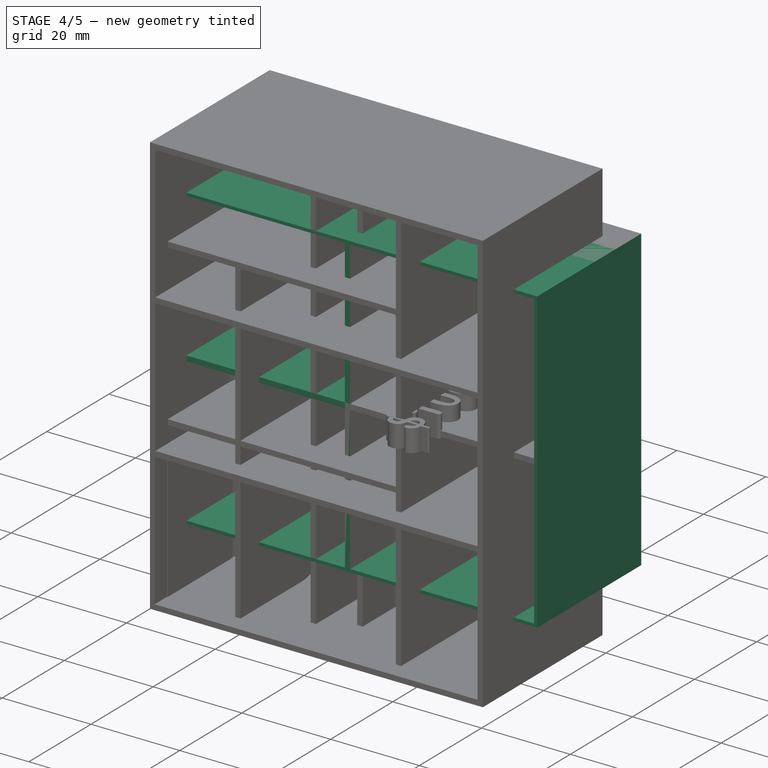
[diagram: stage 4 of 5 — iso view after this stage's code; geometry added in this stage tinted green]
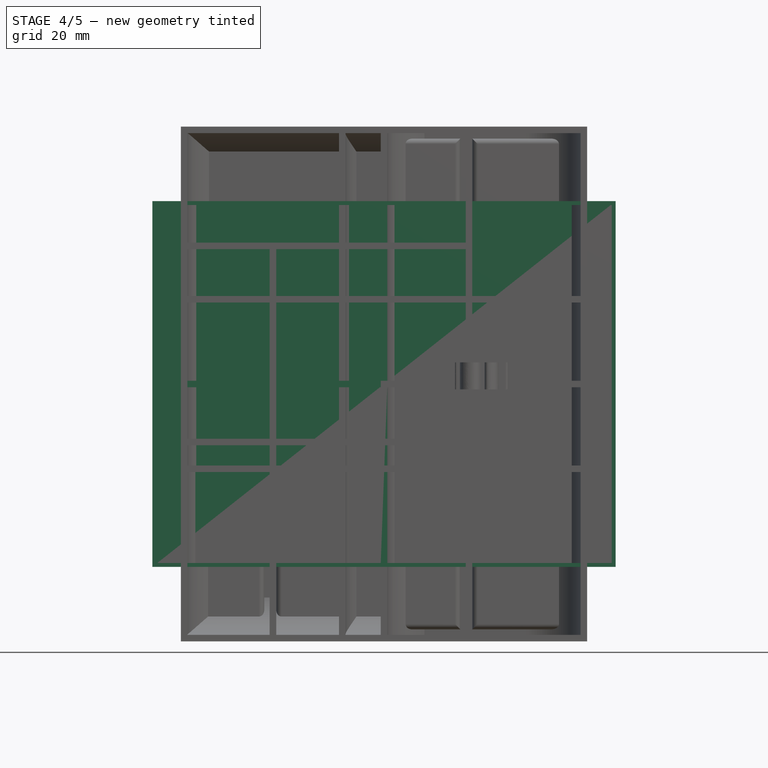
[diagram: stage 4 of 5 — front view after this stage's code; geometry added in this stage tinted green]
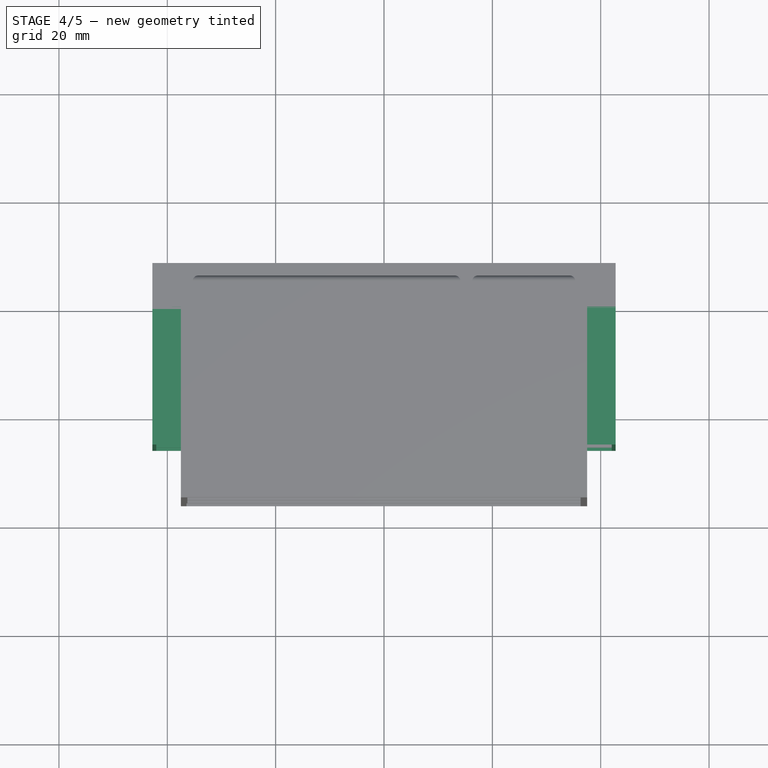
[diagram: stage 4 of 5 — top view after this stage's code; geometry added in this stage tinted green]
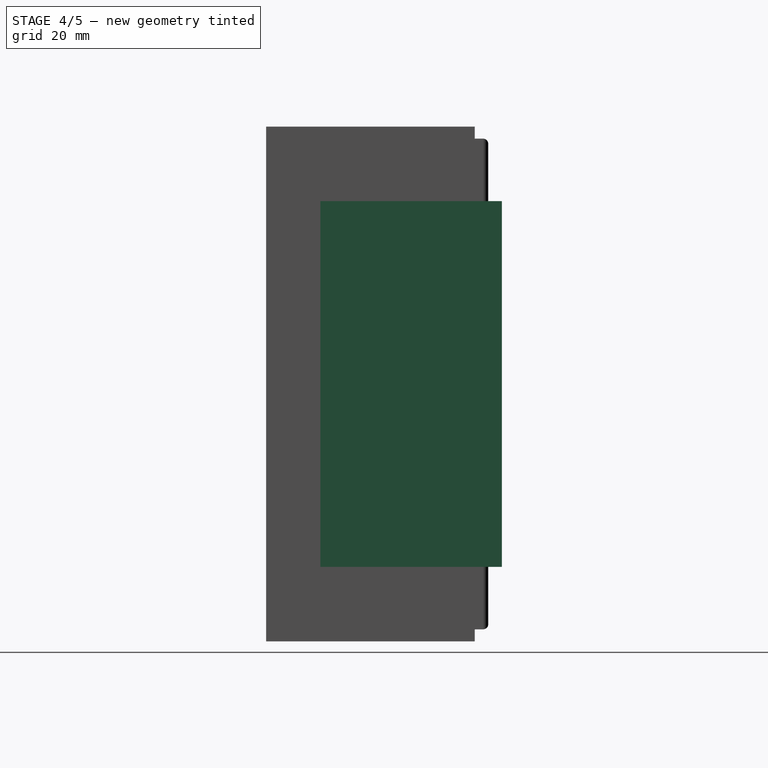
[diagram: stage 4 of 5 — right view after this stage's code; geometry added in this stage tinted green]
FEATURE [Sketcher::SketchObject] Sketch
  AttachmentOffset = pos=(-22,6,24) rot=(0.707107,0,0.707107;3.14159rad)
  FullyConstrained = false
  MapMode = 5
  Placement = pos=(-22,6,24) rot=(0.707107,0,0.707107;3.14159rad)
  Support = -> [XY_Plane001]
  sketch-geometry (3):
    g0: ArcOfCircle CenterX=0 CenterY=0 CenterZ=0 NormalX=0 NormalY=0 NormalZ=1 AngleXU=0 Radius=8.75 StartAngle=2.56065 EndAngle=6.86413
    g1: ArcOfCircle CenterX=11.1693 CenterY=-7.33289 CenterZ=0 NormalX=0 NormalY=0 NormalZ=1 AngleXU=0 Radius=22.1113 StartAngle=2.10034 EndAngle=2.56065
    g2: ArcOfCircle CenterX=-11.1693 CenterY=-7.33289 CenterZ=0 NormalX=0 NormalY=0 NormalZ=1 AngleXU=0 Radius=22.1113 StartAngle=0.580946 EndAngle=1.04125
  constraints (7):
    c: Coincident(g0,g-1)
    c: Coincident(g2,g1)
    c: Diameter(g0) = 17.5
    c: Tangent(g1,g0) = -1.5708
    c: Tangent(g2,g0) = -1.5708
    c: DistanceY(g0,g1) = 11.75
    c: Symmetric(g1,g2,g-2)
FEATURE [Sketcher::SketchObject] Sketch002
  FullyConstrained = true
  MapMode = 5
  Placement = pos=(0,0,0) rot=(1,0,0;1.5708rad)
  Support = -> [XZ_Plane001]
  sketch-geometry (4):
    g0: LineSegment StartX=-42.75 StartY=33.75 StartZ=0 EndX=42.75 EndY=33.75 EndZ=0
    g1: LineSegment StartX=42.75 StartY=33.75 StartZ=0 EndX=42.75 EndY=-33.75 EndZ=0
    g2: LineSegment StartX=42.75 StartY=-33.75 StartZ=0 EndX=-42.75 EndY=-33.75 EndZ=0
    g3: LineSegment StartX=-42.75 StartY=-33.75 StartZ=0 EndX=-42.75 EndY=33.75 EndZ=0
  constraints (10):
    c: Coincident(g0,g1)
    c: Coincident(g1,g2)
    c: Coincident(g2,g3)
    c: Coincident(g3,g0)
    c: Horizontal(g2)
    c: Vertical(g1)
    c: DistanceY(g3,g3) = 67.5
    c: DistanceX(g0,g0) = 85.5
    c: Symmetric(g0,g0,g-2)
    c: Symmetric(g0,g2,g-1)
FEATURE [PartDesign::Pad] Pad
  Direction = (1,1,1)
  Length = 15
  Length2 = 100
  Midplane = true
  Placement = pos=(0,0,0) rot=(1,0,0;1.5708rad)
  Profile = -> Sketch002
  Type = 0
FEATURE [PartDesign::Pocket] Pocket
  BaseFeature = -> Pad
  Length = 36
  Length2 = 36
  Midplane = true
  Placement = pos=(0,0,0) rot=(1,0,0;1.5708rad)
  Profile = -> Sketch
  Type = 0
FEATURE [PartDesign::Body] Body  label="Part001"
  Group = -> [Sketch,Sketch002,Pad,Pocket,MultiTransform,LinearPattern,LinearPattern001,Sketch003,Pocket001,LinearPattern002,Sketch004,Pocket002,LinearPattern003,Sketch005,Pad001,Fillet]
  Origin = -> Origin001
  Tip = -> Fillet
FEATURE [App::Part] Part  label="PlayerAndBusiness"
  Group = -> [Body]
  Origin = -> Origin
FEATURE [Sketcher::SketchObject] Sketch006
  AttachmentOffset = pos=(0,0,-1) rot=(0,0,1;0rad)
  FullyConstrained = true
  MapMode = 5
  Placement = pos=(0,1,2e-16) rot=(1,0,0;1.5708rad)
  Support = -> [XZ_Plane003]
  sketch-geometry (4):
    g0: LineSegment StartX=-42.75 StartY=33.75 StartZ=0 EndX=42.75 EndY=33.75 EndZ=0
    g1: LineSegment StartX=42.75 StartY=33.75 StartZ=0 EndX=42.75 EndY=-33.75 EndZ=0
    g2: LineSegment StartX=42.75 StartY=-33.75 StartZ=0 EndX=-42.75 EndY=-33.75 EndZ=0
    g3: LineSegment StartX=-42.75 StartY=-33.75 StartZ=0 EndX=-42.75 EndY=33.75 EndZ=0
  constraints (10):
    c: Coincident(g0,g1)
    c: Coincident(g1,g2)
    c: Coincident(g2,g3)
    c: Coincident(g3,g0)
    c: Horizontal(g2)
    c: Vertical(g1)
    c: DistanceY(g3,g3) = 67.5
    c: DistanceX(g0,g0) = 85.5
    c: Symmetric(g0,g0,g-2)
    c: Symmetric(g0,g2,g-1)
FEATURE [PartDesign::Pad] Pad002
  Direction = (1,1,1)
  Length = 2
  Length2 = 100
  Placement = pos=(0,0,0) rot=(1,0,0;1.5708rad)
  Profile = -> Sketch006
  Type = 0
FEATURE [Sketcher::SketchObject] Sketch007
  AttachmentOffset = pos=(0,0,-1) rot=(0,0,1;0rad)
  FullyConstrained = true
  MapMode = 5
  Placement = pos=(0,1,2e-16) rot=(1,0,0;1.5708rad)
  Support = -> [XZ_Plane003]
  sketch-geometry (12):
    g0: LineSegment StartX=-0.6 StartY=0.6 StartZ=0 EndX=-0.6 EndY=33.75 EndZ=0
    g1: LineSegment StartX=-0.6 StartY=33.75 StartZ=0 EndX=0.6 EndY=33.75 EndZ=0
    g2: LineSegment StartX=0.6 StartY=33.75 StartZ=0 EndX=0.6 EndY=0.6 EndZ=0
    g3: LineSegment StartX=0.6 StartY=0.6 StartZ=0 EndX=42.75 EndY=0.6 EndZ=0
    g4: LineSegment StartX=42.75 StartY=0.6 StartZ=0 EndX=42.75 EndY=-0.6 EndZ=0
    g5: LineSegment StartX=42.75 StartY=-0.6 StartZ=0 EndX=0.6 EndY=-0.6 EndZ=0
    g6: LineSegment StartX=0.6 StartY=-0.6 StartZ=0 EndX=0.6 EndY=-33.75 EndZ=0
    g7: LineSegment StartX=0.6 StartY=-33.75 StartZ=0 EndX=-0.6 EndY=-33.75 EndZ=0
    g8: LineSegment StartX=-0.6 StartY=-33.75 StartZ=0 EndX=-0.6 EndY=-0.6 EndZ=0
    g9: LineSegment StartX=-0.6 StartY=-0.6 StartZ=0 EndX=-42.75 EndY=-0.6 EndZ=0
    g10: LineSegment StartX=-42.75 StartY=-0.6 StartZ=0 EndX=-42.75 EndY=0.6 EndZ=0
    g11: LineSegment StartX=-42.75 StartY=0.6 StartZ=0 EndX=-0.6 EndY=0.6 EndZ=0
  constraints (28):
    c: Vertical(g0)
    c: Coincident(g0,g1)
    c: Coincident(g1,g2)
    c: Coincident(g2,g3)
    c: Horizontal(g3)
    c: Coincident(g3,g4)
    c: Coincident(g4,g5)
    c: Coincident(g5,g6)
    c: Vertical(g6)
    c: Coincident(g6,g7)
    c: Horizontal(g7)
    c: Coincident(g7,g8)
    c: Coincident(g8,g9)
    c: Coincident(g9,g10)
    c: Coincident(g10,g11)
    c: Coincident(g11,g0)
    c: DistanceY(g10,g10) = 1.2
    c: DistanceX(g1,g1) = 1.2
    c: Symmetric(g0,g1,g-2)
    c: Symmetric(g10,g9,g-1)
    c: Symmetric(g3,g4,g-1)
    c: Symmetric(g0,g8,g-1)
    c: Symmetric(g2,g5,g-1)
    c: Symmetric(g0,g2,g-2)
    c: Symmetric(g9,g4,g-2)
    c: Symmetric(g7,g0,g-1)
    c: DistanceY(g7,g0) = 67.5
    c: DistanceX(g10,g3) = 85.5
FEATURE [PartDesign::Pad] Pad003
  BaseFeature = -> Pad002
  Direction = (1,1,1)
  Length = 27
  Length2 = 100
  Placement = pos=(0,0,0) rot=(1,0,0;1.5708rad)
  Profile = -> Sketch007
  Type = 0
FEATURE [PartDesign::Fillet] Fillet001
  Base = -> Pad003 [Face2]
  BaseFeature = -> Pad003
  Placement = pos=(0,0,0) rot=(1,0,0;1.5708rad)
  Radius = 1.5
  SupportTransform = false
FEATURE [Sketcher::SketchObject] Sketch008
  AttachmentOffset = pos=(0,0,1) rot=(0,0,1;0rad)
  FullyConstrained = true
  MapMode = 5
  Placement = pos=(0,-1,-2e-16) rot=(1,0,0;1.5708rad)
  Support = -> [XZ_Plane003]
  sketch-geometry (8):
    g0: LineSegment StartX=-42.75 StartY=33.75 StartZ=0 EndX=42.75 EndY=33.75 EndZ=0
    g1: LineSegment StartX=42.75 StartY=33.75 StartZ=0 EndX=42.75 EndY=-33.75 EndZ=0
    g2: LineSegment StartX=42.75 StartY=-33.75 StartZ=0 EndX=-42.75 EndY=-33.75 EndZ=0
    g3: LineSegment StartX=-42.75 StartY=-33.75 StartZ=0 EndX=-42.75 EndY=33.75 EndZ=0
    g4: LineSegment StartX=-42.05 StartY=33.05 StartZ=0 EndX=42.05 EndY=33.05 EndZ=0
    g5: LineSegment StartX=42.05 StartY=33.05 StartZ=0 EndX=42.05 EndY=-33.05 EndZ=0
    g6: LineSegment StartX=42.05 StartY=-33.05 StartZ=0 EndX=-42.05 EndY=-33.05 EndZ=0
    g7: LineSegment StartX=-42.05 StartY=-33.05 StartZ=0 EndX=-42.05 EndY=33.05 EndZ=0
  constraints (20):
    c: Coincident(g0,g1)
    c: Coincident(g1,g2)
    c: Coincident(g2,g3)
    c: Coincident(g3,g0)
    c: Horizontal(g2)
    c: Vertical(g1)
    c: Coincident(g4,g5)
    c: Coincident(g5,g6)
    c: Coincident(g6,g7)
    c: Coincident(g7,g4)
    c: Horizontal(g6)
    c: Vertical(g5)
    c: DistanceX(g0,g0) = 85.5
    c: DistanceY(g3,g3) = 67.5
    c: DistanceY(g7,g7) = 66.1
    c: DistanceX(g4,g4) = 84.1
    c: Symmetric(g4,g6,g-1)
    c: Symmetric(g0,g2,g-1)
    c: Symmetric(g0,g0,g-2)
    c: Symmetric(g4,g4,g-2)
FEATURE [PartDesign::Pad] Pad004
  BaseFeature = -> Fillet001
  Direction = (1,1,1)
  Length = 25
  Length2 = 100
  Placement = pos=(0,0,0) rot=(1,0,0;1.5708rad)
  Profile = -> Sketch008
  Type = 0
FEATURE [PartDesign::Fillet] Fillet002
  Base = -> Pad004 [Face58,Face35,Face61,Face62]
  BaseFeature = -> Pad004
  Placement = pos=(0,0,0) rot=(1,0,0;1.5708rad)
  Radius = 3
  SupportTransform = false
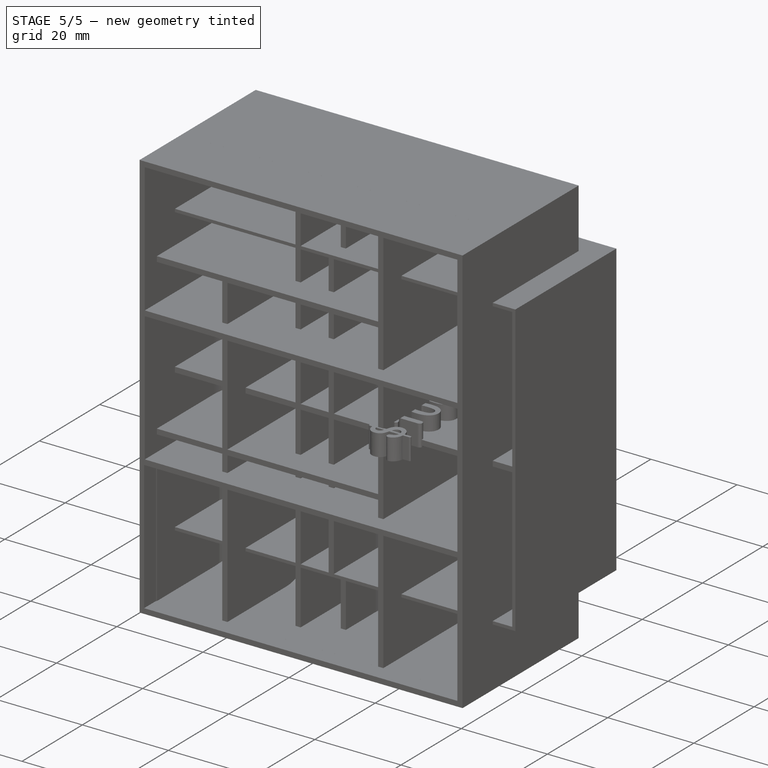
[diagram: stage 5 of 5 — iso view after this stage's code; geometry added in this stage tinted green]
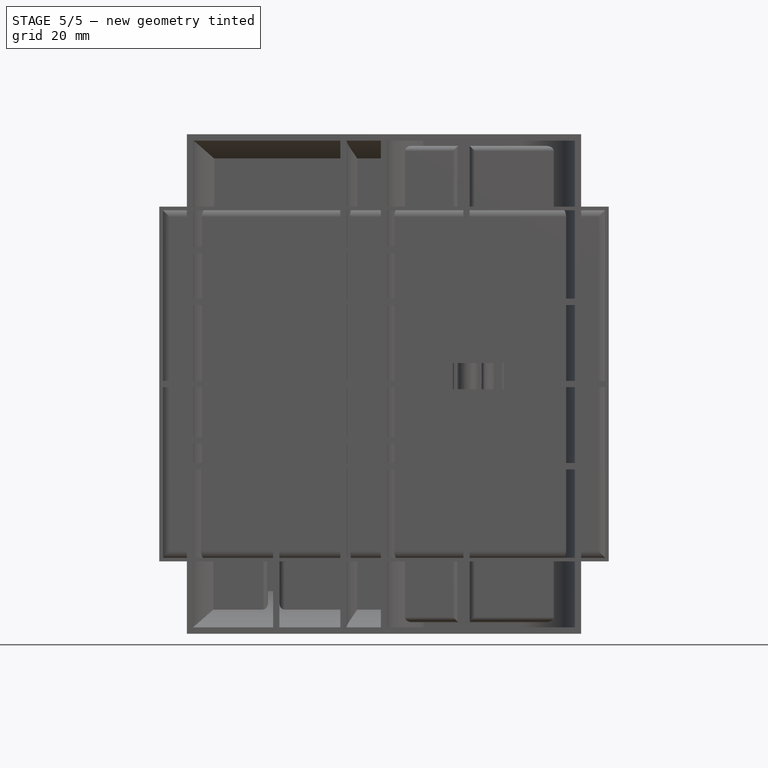
[diagram: stage 5 of 5 — front view after this stage's code; geometry added in this stage tinted green]
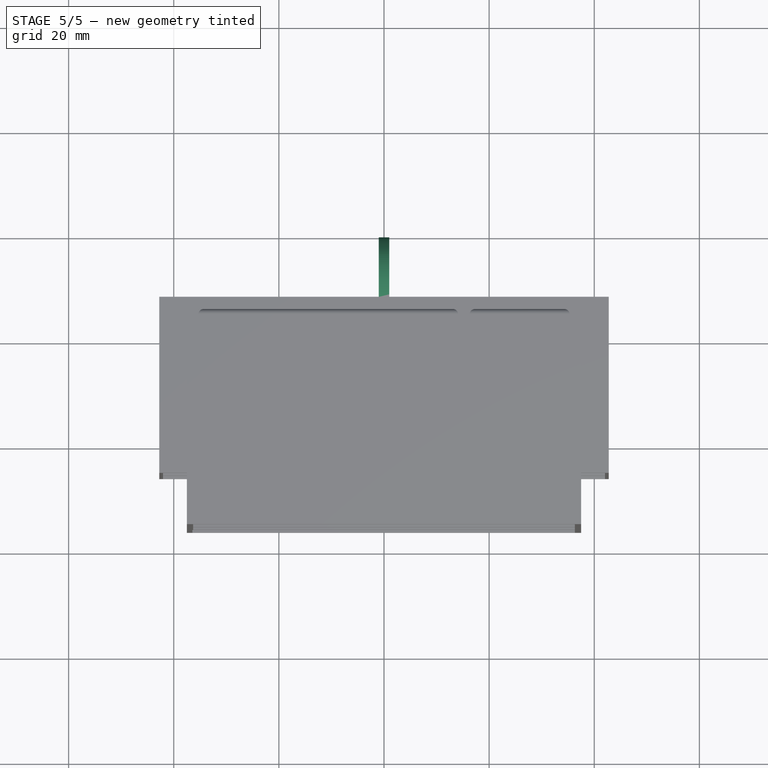
[diagram: stage 5 of 5 — top view after this stage's code; geometry added in this stage tinted green]
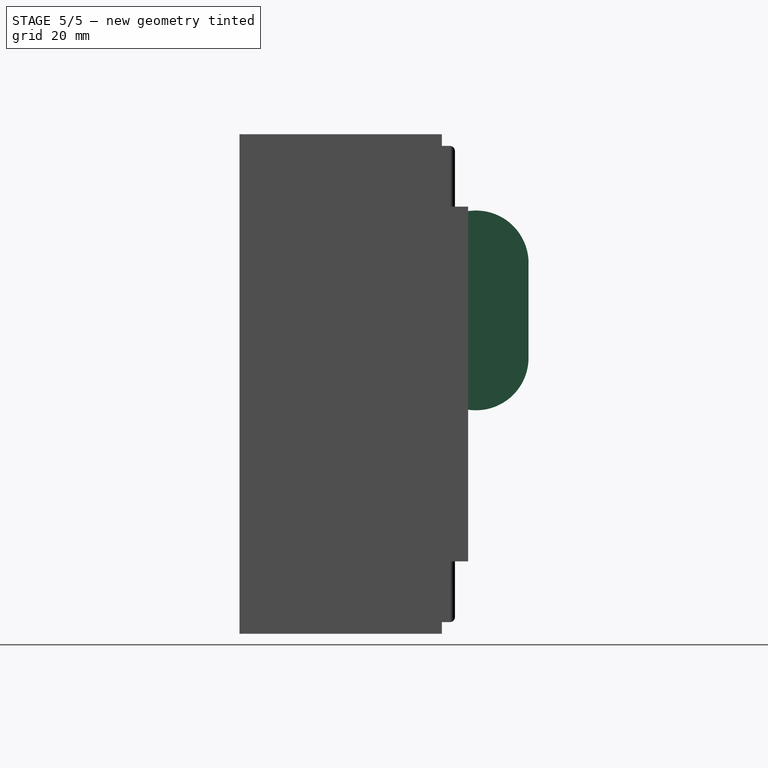
[diagram: stage 5 of 5 — right view after this stage's code; geometry added in this stage tinted green]
FEATURE [PartDesign::LinearPattern] LinearPattern
  Direction = -> Sketch [H_Axis]
  Length = 19
  Occurrences = 2
  Placement = pos=(0,0,0) rot=(1,0,0;1.5708rad)
  Reversed = true
FEATURE [PartDesign::LinearPattern] LinearPattern001
  Direction = -> Sketch [N_Axis]
  Length = 44
  Occurrences = 2
  Placement = pos=(0,0,0) rot=(1,0,0;1.5708rad)
FEATURE [PartDesign::MultiTransform] MultiTransform
  BaseFeature = -> Pocket
  Originals = -> [Pocket]
  Placement = pos=(0,0,0) rot=(1,0,0;1.5708rad)
  Transformations = -> [LinearPattern,LinearPattern001]
FEATURE [Sketcher::SketchObject] Sketch003
  AttachmentOffset = pos=(-31,-19,7) rot=(0,0,1;0rad)
  FullyConstrained = true
  MapMode = 5
  Placement = pos=(-31,-7,-19) rot=(1,0,0;1.5708rad)
  Support = -> [XZ_Plane001]
  sketch-geometry (4):
    g0: LineSegment StartX=-10.5 StartY=13 StartZ=0 EndX=10.5 EndY=13 EndZ=0
    g1: LineSegment StartX=10.5 StartY=13 StartZ=0 EndX=10.5 EndY=-13 EndZ=0
    g2: LineSegment StartX=10.5 StartY=-13 StartZ=0 EndX=-10.5 EndY=-13 EndZ=0
    g3: LineSegment StartX=-10.5 StartY=-13 StartZ=0 EndX=-10.5 EndY=13 EndZ=0
  constraints (10):
    c: Coincident(g0,g1)
    c: Coincident(g1,g2)
    c: Coincident(g2,g3)
    c: Coincident(g3,g0)
    c: Horizontal(g2)
    c: Vertical(g1)
    c: DistanceY(g3,g3) = 26
    c: DistanceX(g0,g0) = 21
    c: Symmetric(g0,g0,g-2)
    c: Symmetric(g0,g2,g-1)
FEATURE [PartDesign::Pocket] Pocket001
  BaseFeature = -> MultiTransform
  Length = 20
  Length2 = 100
  Placement = pos=(0,0,0) rot=(1,0,0;1.5708rad)
  Profile = -> Sketch003
  Type = 0
FEATURE [PartDesign::LinearPattern] LinearPattern002
  BaseFeature = -> Pocket001
  Direction = -> Sketch003 [H_Axis]
  Length = 62
  Occurrences = 3
  Originals = -> [Pocket001]
  Placement = pos=(0,0,0) rot=(1,0,0;1.5708rad)
FEATURE [Sketcher::SketchObject] Sketch004
  AttachmentOffset = pos=(15.5,-19,-2) rot=(0,0,1;0rad)
  FullyConstrained = true
  MapMode = 5
  Placement = pos=(15.5,2,-19) rot=(1,0,0;1.5708rad)
  Support = -> [XZ_Plane001]
  sketch-geometry (4):
    g0: LineSegment StartX=3.25 StartY=-13 StartZ=0 EndX=-3.25 EndY=-13 EndZ=0
    g1: LineSegment StartX=-3.25 StartY=-13 StartZ=0 EndX=-3.25 EndY=13 EndZ=0
    g2: LineSegment StartX=-3.25 StartY=13 StartZ=0 EndX=3.25 EndY=13 EndZ=0
    g3: LineSegment StartX=3.25 StartY=13 StartZ=0 EndX=3.25 EndY=-13 EndZ=0
  constraints (10):
    c: Coincident(g0,g1)
    c: Coincident(g1,g2)
    c: Coincident(g2,g3)
    c: Coincident(g3,g0)
    c: Horizontal(g0)
    c: Vertical(g3)
    c: DistanceX(g2,g2) = 6.5
    c: DistanceY(g1,g1) = 26
    c: Symmetric(g1,g2,g-2)
    c: Symmetric(g0,g1,g-1)
FEATURE [PartDesign::Pocket] Pocket002
  BaseFeature = -> LinearPattern002
  Length = 6
  Length2 = 100
  Placement = pos=(0,0,0) rot=(1,0,0;1.5708rad)
  Profile = -> Sketch004
  Type = 0
FEATURE [PartDesign::LinearPattern] LinearPattern003
  BaseFeature = -> Pocket002
  Direction = -> Sketch004 [H_Axis]
  Length = 31
  Occurrences = 2
  Originals = -> [Pocket002]
  Placement = pos=(0,0,0) rot=(1,0,0;1.5708rad)
  Reversed = true
FEATURE [Sketcher::SketchObject] Sketch005
  FullyConstrained = true
  MapMode = 5
  Placement = pos=(0,0,0) rot=(0.57735,0.57735,0.57735;2.0944rad)
  Support = -> [YZ_Plane001]
  sketch-geometry (4):
    g0: ArcOfCircle CenterX=9 CenterY=23 CenterZ=0 NormalX=0 NormalY=0 NormalZ=1 AngleXU=0 Radius=10 StartAngle=1.23e-14 EndAngle=3.14159
    g1: ArcOfCircle CenterX=9 CenterY=5 CenterZ=0 NormalX=0 NormalY=0 NormalZ=1 AngleXU=0 Radius=10 StartAngle=3.14159 EndAngle=6.28319
    g2: LineSegment StartX=-1 StartY=23 StartZ=0 EndX=-1 EndY=5 EndZ=0
    g3: LineSegment StartX=19 StartY=23 StartZ=0 EndX=19 EndY=5 EndZ=0
  constraints (10):
    c: Tangent(g0,g3) = 1.5708
    c: Tangent(g0,g2) = -1.5708
    c: Tangent(g2,g1) = -1.5708
    c: Tangent(g3,g1) = 1.5708
    c: Vertical(g2)
    c: Equal(g0,g1)
    c: Radius(g1) = 10
    c: DistanceX(g-1,g0) = 9
    c: DistanceY(g-1,g1) = 5
    c: DistanceY(g-1,g0) = 23
FEATURE [PartDesign::Pad] Pad001
  BaseFeature = -> LinearPattern003
  Direction = (1,1,1)
  Length = 2
  Length2 = 100
  Midplane = true
  Placement = pos=(0,0,0) rot=(1,0,0;1.5708rad)
  Profile = -> Sketch005
  Type = 0
FEATURE [PartDesign::Fillet] Fillet
  Base = -> Pad001 [Face5]
  BaseFeature = -> Pad001
  Placement = pos=(0,0,0) rot=(1,0,0;1.5708rad)
  Radius = 2
  SupportTransform = false
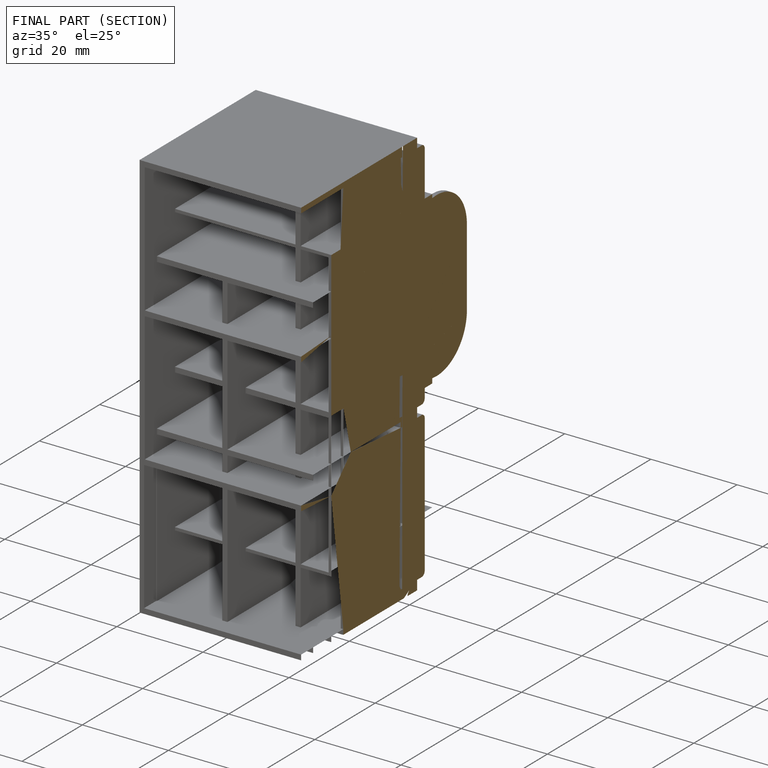
[diagram: finished part — half-section view (interior)]
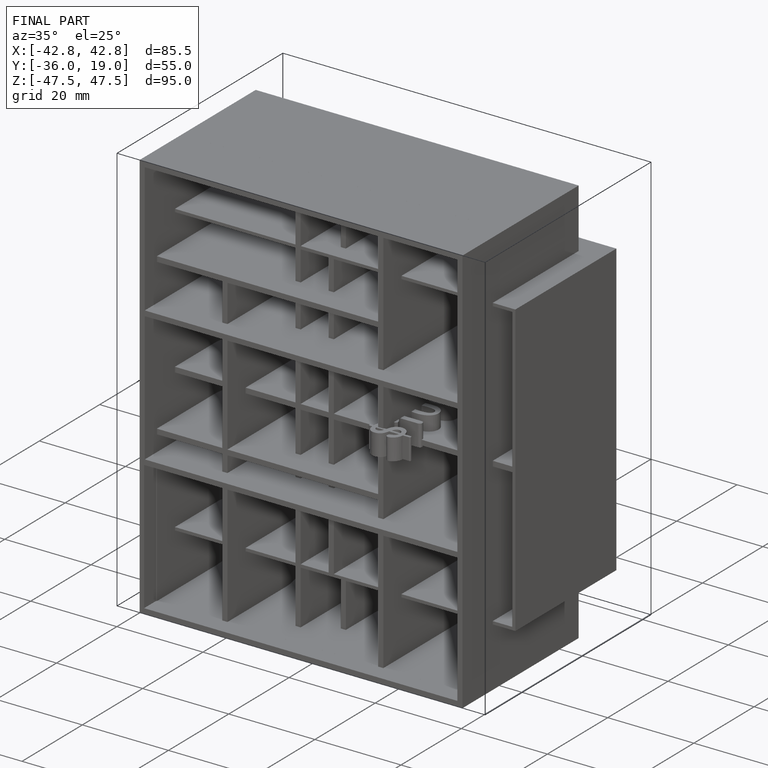
[diagram: finished part — iso view with bounding-box wireframe]
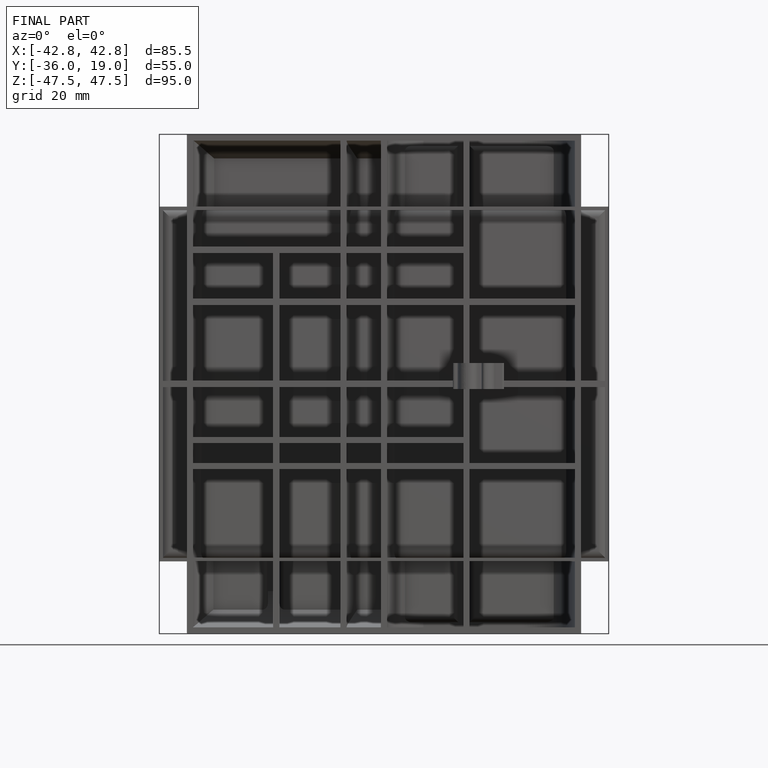
[diagram: finished part — front view with bounding-box wireframe]
